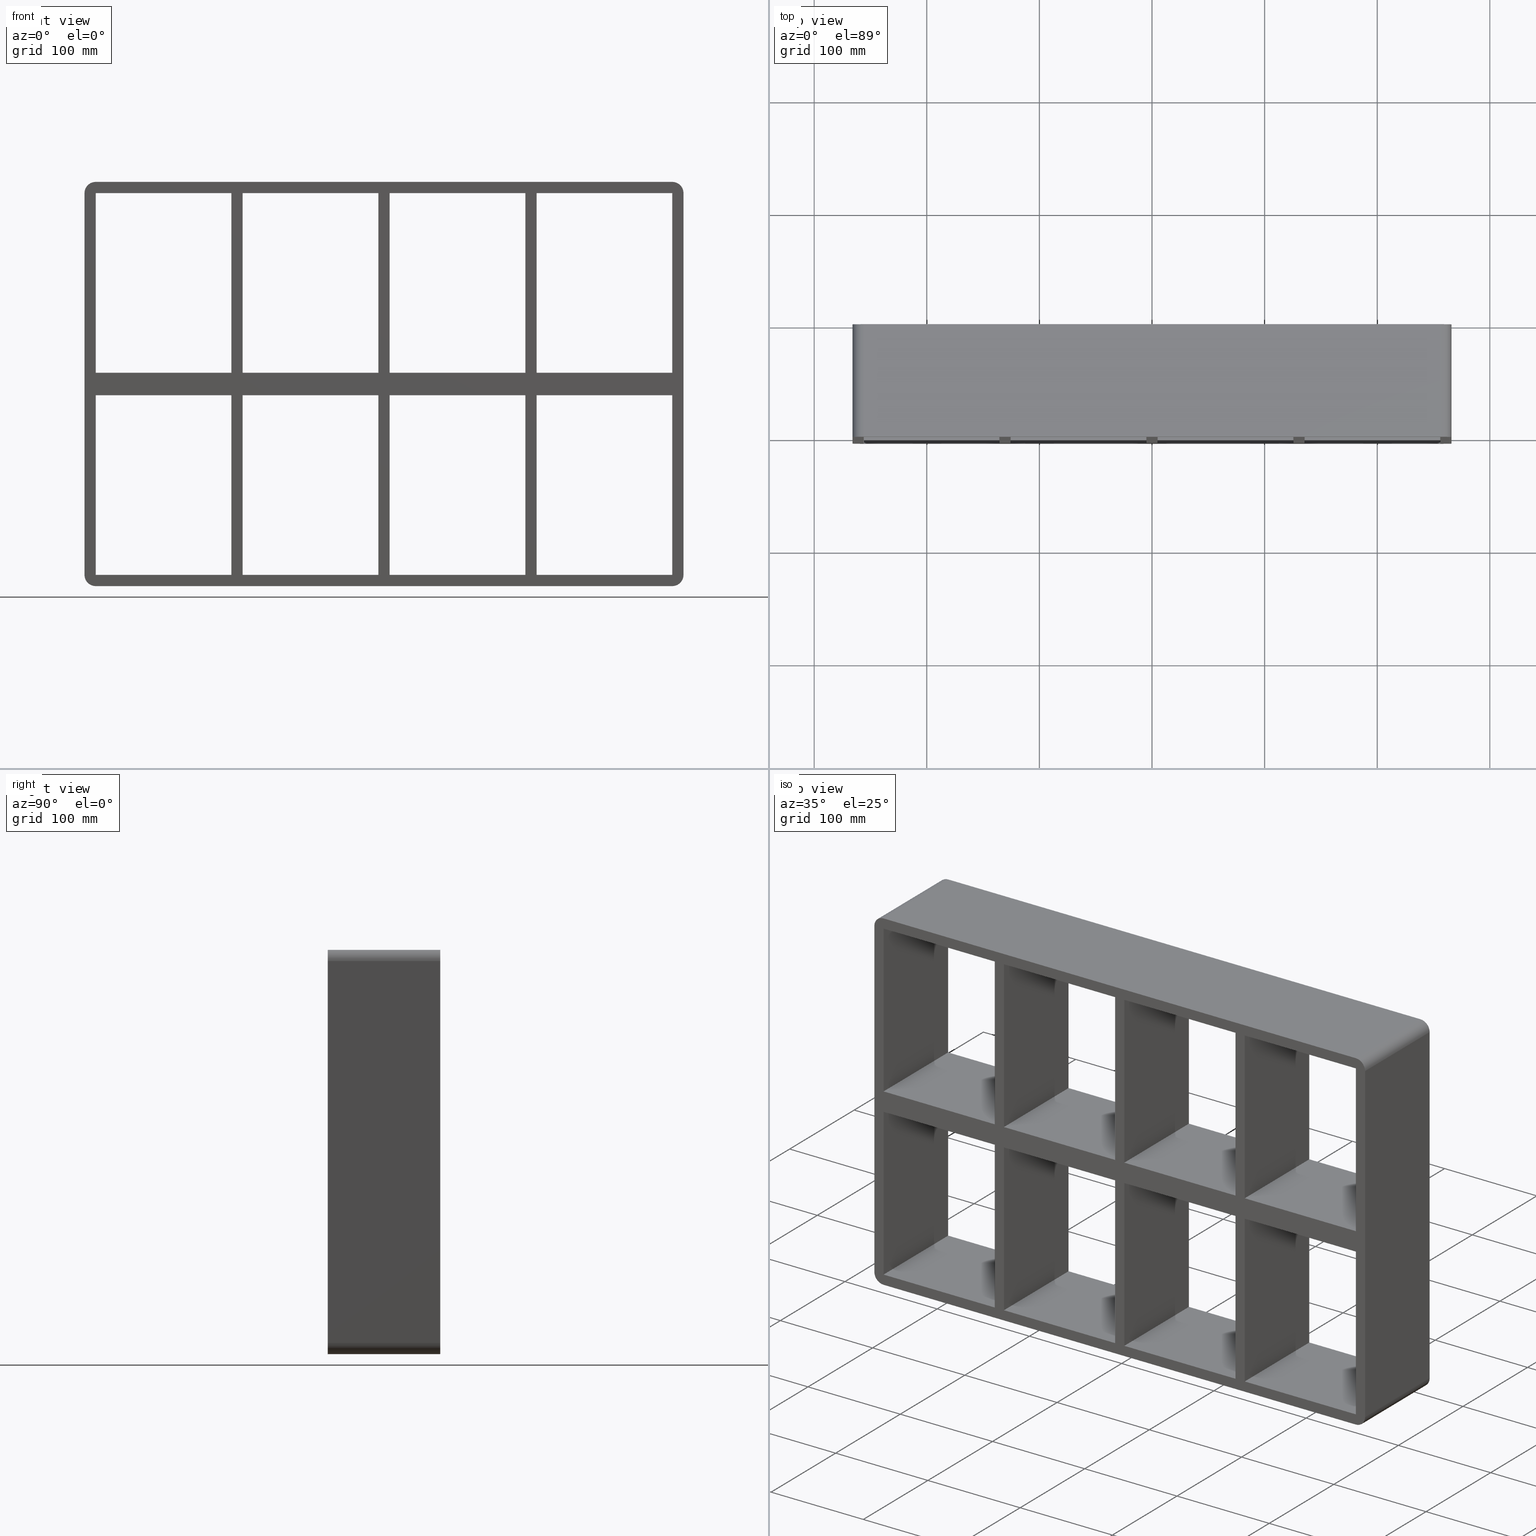
[diagram: canonical four-view strip — front | top / right | iso, engineering-drawing reading convention]
A machine part, canonical four-view strip (front | top / right | iso — engineering-drawing reading convention). The complete STEP part file that produces these views, byte-faithful:
ISO-10303-21;
HEADER;
/****************************************************************
 * Generated by software with PDElib inside                    *
 * PDElib Version v51a, created Wed 11/30/2011                  *
 * ITI Transcendata (http://www.transcendata.com/)              *
 ****************************************************************/
FILE_DESCRIPTION((''),'2;1');
FILE_NAME('C:\\RoxtecConfigurator\\CreatedFiles\\STEP\\SK4+4X4.stp','2013-02-22T14:22:01',(''),(''),'Autodesk Inventor 2013','Autodesk Inventor 2013','');
FILE_SCHEMA(('AUTOMOTIVE_DESIGN { 1 0 10303 214 1 1 1 1 }'));
ENDSEC;
DATA;
#5=APPLICATION_CONTEXT('automotive design');
#6=APPLICATION_PROTOCOL_DEFINITION('International Standard','automotive_design',2001,#5);
#7=PRODUCT_CONTEXT('',#5,'mechanical');
#8=PRODUCT('roxtec S_SF_G','roxtec S_SF_G',$,(#7));
#9=PRODUCT_RELATED_PRODUCT_CATEGORY('part',$,(#8));
#10=PRODUCT_DEFINITION_FORMATION('',$,#8);
#11=PRODUCT_DEFINITION_CONTEXT('part definition',#5,'design');
#12=PRODUCT_DEFINITION('',$,#10,#11);
#18=(NAMED_UNIT(*)PLANE_ANGLE_UNIT()SI_UNIT($,.RADIAN.));
#19=DIMENSIONAL_EXPONENTS(0.0,0.0,0.0,0.0,0.0,0.0,0.0);
#20=PLANE_ANGLE_MEASURE_WITH_UNIT(PLANE_ANGLE_MEASURE(0.0174532925),#18);
#24=(CONVERSION_BASED_UNIT('DEGREE',#20)NAMED_UNIT(#19)PLANE_ANGLE_UNIT());
#28=(NAMED_UNIT(*)SI_UNIT($,.STERADIAN.)SOLID_ANGLE_UNIT());
#32=(LENGTH_UNIT()NAMED_UNIT(*)SI_UNIT(.MILLI.,.METRE.));
#34=UNCERTAINTY_MEASURE_WITH_UNIT(LENGTH_MEASURE(0.01),#32,'DISTANCE_ACCURACY_VALUE','');
#36=(GEOMETRIC_REPRESENTATION_CONTEXT(3)GLOBAL_UNCERTAINTY_ASSIGNED_CONTEXT((#34))GLOBAL_UNIT_ASSIGNED_CONTEXT((#24,#28,#32))REPRESENTATION_CONTEXT('None','None'));
#37=AXIS2_PLACEMENT_3D('',#38,#39,#40);
#38=CARTESIAN_POINT('',(0.0,0.0,0.0));
#39=DIRECTION('',(0.0,0.0,1.0));
#40=DIRECTION('',(1.0,0.0,0.0));
#41=SHAPE_REPRESENTATION('',(#37),#36);
#42=PRODUCT_DEFINITION_SHAPE('','',#12);
#43=SHAPE_DEFINITION_REPRESENTATION(#42,#41);
#49=(NAMED_UNIT(*)PLANE_ANGLE_UNIT()SI_UNIT($,.RADIAN.));
#50=DIMENSIONAL_EXPONENTS(0.0,0.0,0.0,0.0,0.0,0.0,0.0);
#51=PLANE_ANGLE_MEASURE_WITH_UNIT(PLANE_ANGLE_MEASURE(0.0174532925),#49);
#55=(CONVERSION_BASED_UNIT('DEGREE',#51)NAMED_UNIT(#50)PLANE_ANGLE_UNIT());
#59=(NAMED_UNIT(*)SI_UNIT($,.STERADIAN.)SOLID_ANGLE_UNIT());
#63=(LENGTH_UNIT()NAMED_UNIT(*)SI_UNIT(.MILLI.,.METRE.));
#65=UNCERTAINTY_MEASURE_WITH_UNIT(LENGTH_MEASURE(0.000001),#63,'DISTANCE_ACCURACY_VALUE','');
#67=(GEOMETRIC_REPRESENTATION_CONTEXT(3)GLOBAL_UNCERTAINTY_ASSIGNED_CONTEXT((#65))GLOBAL_UNIT_ASSIGNED_CONTEXT((#55,#59,#63))REPRESENTATION_CONTEXT('','3D'));
#68=CARTESIAN_POINT('',(125.49999999999886,-3.0,-169.50000000000003));
#69=DIRECTION('',(-1.0,0.0,0.0));
#70=DIRECTION('',(0.0,0.0,1.0));
#71=AXIS2_PLACEMENT_3D('',#68,#69,#70);
#72=PLANE('',#71);
#73=CARTESIAN_POINT('',(125.49999999999883,-3.0,10.0));
#74=VERTEX_POINT('',#73);
#75=CARTESIAN_POINT('',(125.49999999999883,97.0,10.0));
#76=VERTEX_POINT('',#75);
#77=CARTESIAN_POINT('',(125.49999999999883,-3.0,10.000000000000009));
#78=DIRECTION('',(0.0,1.0,0.0));
#79=VECTOR('',#78,100.0);
#80=LINE('',#77,#79);
#81=EDGE_CURVE('',#74,#76,#80,.T.);
#82=ORIENTED_EDGE('',*,*,#81,.F.);
#83=CARTESIAN_POINT('',(125.49999999999881,-3.0,169.50000000000003));
#84=VERTEX_POINT('',#83);
#85=CARTESIAN_POINT('',(125.49999999999882,-3.0,10.0));
#86=DIRECTION('',(0.0,0.0,1.0));
#87=VECTOR('',#86,159.50000000000003);
#88=LINE('',#85,#87);
#89=EDGE_CURVE('',#74,#84,#88,.T.);
#90=ORIENTED_EDGE('',*,*,#89,.T.);
#91=CARTESIAN_POINT('',(125.49999999999881,97.0,169.50000000000003));
#92=VERTEX_POINT('',#91);
#93=CARTESIAN_POINT('',(125.49999999999881,97.0,169.50000000000003));
#94=DIRECTION('',(0.0,-1.0,0.0));
#95=VECTOR('',#94,100.0);
#96=LINE('',#93,#95);
#97=EDGE_CURVE('',#92,#84,#96,.T.);
#98=ORIENTED_EDGE('',*,*,#97,.F.);
#99=CARTESIAN_POINT('',(125.49999999999882,97.0,10.0));
#100=DIRECTION('',(0.0,0.0,1.0));
#101=VECTOR('',#100,159.50000000000003);
#102=LINE('',#99,#101);
#103=EDGE_CURVE('',#76,#92,#102,.T.);
#104=ORIENTED_EDGE('',*,*,#103,.F.);
#105=EDGE_LOOP('',(#82,#90,#98,#104));
#106=FACE_OUTER_BOUND('',#105,.T.);
#107=ADVANCED_FACE('',(#106),#72,.T.);
#108=CARTESIAN_POINT('',(125.49999999999886,-3.0,-169.50000000000003));
#109=DIRECTION('',(-1.0,0.0,0.0));
#110=DIRECTION('',(0.0,0.0,1.0));
#111=AXIS2_PLACEMENT_3D('',#108,#109,#110);
#112=PLANE('',#111);
#113=CARTESIAN_POINT('',(125.49999999999883,97.0,-10.000000000015525));
#114=VERTEX_POINT('',#113);
#115=CARTESIAN_POINT('',(125.49999999999883,-3.0,-10.000000000015525));
#116=VERTEX_POINT('',#115);
#117=CARTESIAN_POINT('',(125.49999999999882,97.0,-10.000000000015534));
#118=DIRECTION('',(0.0,-1.0,0.0));
#119=VECTOR('',#118,100.0);
#120=LINE('',#117,#119);
#121=EDGE_CURVE('',#114,#116,#120,.T.);
#122=ORIENTED_EDGE('',*,*,#121,.F.);
#123=CARTESIAN_POINT('',(125.49999999999886,97.0,-169.50000000000003));
#124=VERTEX_POINT('',#123);
#125=CARTESIAN_POINT('',(125.49999999999886,97.0,-169.50000000000003));
#126=DIRECTION('',(0.0,0.0,1.0));
#127=VECTOR('',#126,159.49999999998451);
#128=LINE('',#125,#127);
#129=EDGE_CURVE('',#124,#114,#128,.T.);
#130=ORIENTED_EDGE('',*,*,#129,.F.);
#131=CARTESIAN_POINT('',(125.49999999999886,-3.0,-169.50000000000003));
#132=VERTEX_POINT('',#131);
#133=CARTESIAN_POINT('',(125.49999999999886,-3.0,-169.50000000000003));
#134=DIRECTION('',(0.0,1.0,0.0));
#135=VECTOR('',#134,100.0);
#136=LINE('',#133,#135);
#137=EDGE_CURVE('',#132,#124,#136,.T.);
#138=ORIENTED_EDGE('',*,*,#137,.F.);
#139=CARTESIAN_POINT('',(125.49999999999886,-3.0,-169.50000000000003));
#140=DIRECTION('',(0.0,0.0,1.0));
#141=VECTOR('',#140,159.49999999998451);
#142=LINE('',#139,#141);
#143=EDGE_CURVE('',#132,#116,#142,.T.);
#144=ORIENTED_EDGE('',*,*,#143,.T.);
#145=EDGE_LOOP('',(#122,#130,#138,#144));
#146=FACE_OUTER_BOUND('',#145,.T.);
#147=ADVANCED_FACE('',(#146),#112,.T.);
#148=CARTESIAN_POINT('',(135.50000000000728,-3.0,169.50000000000003));
#149=DIRECTION('',(1.0,0.0,0.0));
#150=DIRECTION('',(0.0,0.0,-1.0));
#151=AXIS2_PLACEMENT_3D('',#148,#149,#150);
#152=PLANE('',#151);
#153=CARTESIAN_POINT('',(135.50000000000728,97.0,10.0));
#154=VERTEX_POINT('',#153);
#155=CARTESIAN_POINT('',(135.50000000000728,-3.0,10.0));
#156=VERTEX_POINT('',#155);
#157=CARTESIAN_POINT('',(135.50000000000728,97.0,10.0));
#158=DIRECTION('',(0.0,-1.0,0.0));
#159=VECTOR('',#158,100.0);
#160=LINE('',#157,#159);
#161=EDGE_CURVE('',#154,#156,#160,.T.);
#162=ORIENTED_EDGE('',*,*,#161,.F.);
#163=CARTESIAN_POINT('',(135.50000000000728,97.0,169.50000000000003));
#164=VERTEX_POINT('',#163);
#165=CARTESIAN_POINT('',(135.50000000000728,97.0,169.50000000000003));
#166=DIRECTION('',(0.0,0.0,-1.0));
#167=VECTOR('',#166,159.50000000000003);
#168=LINE('',#165,#167);
#169=EDGE_CURVE('',#164,#154,#168,.T.);
#170=ORIENTED_EDGE('',*,*,#169,.F.);
#171=CARTESIAN_POINT('',(135.50000000000728,-3.0,169.50000000000003));
#172=VERTEX_POINT('',#171);
#173=CARTESIAN_POINT('',(135.5000000000073,-3.0,169.50000000000003));
#174=DIRECTION('',(0.0,1.0,0.0));
#175=VECTOR('',#174,100.0);
#176=LINE('',#173,#175);
#177=EDGE_CURVE('',#172,#164,#176,.T.);
#178=ORIENTED_EDGE('',*,*,#177,.F.);
#179=CARTESIAN_POINT('',(135.50000000000728,-3.0,169.50000000000003));
#180=DIRECTION('',(0.0,0.0,-1.0));
#181=VECTOR('',#180,159.50000000000003);
#182=LINE('',#179,#181);
#183=EDGE_CURVE('',#172,#156,#182,.T.);
#184=ORIENTED_EDGE('',*,*,#183,.T.);
#185=EDGE_LOOP('',(#162,#170,#178,#184));
#186=FACE_OUTER_BOUND('',#185,.T.);
#187=ADVANCED_FACE('',(#186),#152,.T.);
#188=CARTESIAN_POINT('',(135.50000000000728,-3.0,169.50000000000003));
#189=DIRECTION('',(1.0,0.0,0.0));
#190=DIRECTION('',(0.0,0.0,-1.0));
#191=AXIS2_PLACEMENT_3D('',#188,#189,#190);
#192=PLANE('',#191);
#193=CARTESIAN_POINT('',(135.50000000000728,-3.0,-10.000000000015525));
#194=VERTEX_POINT('',#193);
#195=CARTESIAN_POINT('',(135.50000000000728,97.0,-10.000000000015525));
#196=VERTEX_POINT('',#195);
#197=CARTESIAN_POINT('',(135.50000000000728,-3.0,-10.000000000015525));
#198=DIRECTION('',(0.0,1.0,0.0));
#199=VECTOR('',#198,100.0);
#200=LINE('',#197,#199);
#201=EDGE_CURVE('',#194,#196,#200,.T.);
#202=ORIENTED_EDGE('',*,*,#201,.F.);
#203=CARTESIAN_POINT('',(135.50000000000728,-3.0,-169.49999999997459));
#204=VERTEX_POINT('',#203);
#205=CARTESIAN_POINT('',(135.50000000000728,-3.0,-10.000000000015518));
#206=DIRECTION('',(0.0,0.0,-1.0));
#207=VECTOR('',#206,159.4999999999591);
#208=LINE('',#205,#207);
#209=EDGE_CURVE('',#194,#204,#208,.T.);
#210=ORIENTED_EDGE('',*,*,#209,.T.);
#211=CARTESIAN_POINT('',(135.50000000000728,97.0,-169.49999999997459));
#212=VERTEX_POINT('',#211);
#213=CARTESIAN_POINT('',(135.5000000000073,97.0,-169.50000000000003));
#214=DIRECTION('',(0.0,-1.0,0.0));
#215=VECTOR('',#214,100.0);
#216=LINE('',#213,#215);
#217=EDGE_CURVE('',#212,#204,#216,.T.);
#218=ORIENTED_EDGE('',*,*,#217,.F.);
#219=CARTESIAN_POINT('',(135.50000000000728,97.0,-10.000000000015518));
#220=DIRECTION('',(0.0,0.0,-1.0));
#221=VECTOR('',#220,159.4999999999591);
#222=LINE('',#219,#221);
#223=EDGE_CURVE('',#196,#212,#222,.T.);
#224=ORIENTED_EDGE('',*,*,#223,.F.);
#225=EDGE_LOOP('',(#202,#210,#218,#224));
#226=FACE_OUTER_BOUND('',#225,.T.);
#227=ADVANCED_FACE('',(#226),#192,.T.);
#228=CARTESIAN_POINT('',(-5.000000000001137,-3.0,-169.50000000000003));
#229=DIRECTION('',(-1.0,0.0,0.0));
#230=DIRECTION('',(0.0,0.0,1.0));
#231=AXIS2_PLACEMENT_3D('',#228,#229,#230);
#232=PLANE('',#231);
#233=CARTESIAN_POINT('',(-5.000000000001174,-3.0,10.0));
#234=VERTEX_POINT('',#233);
#235=CARTESIAN_POINT('',(-5.000000000001174,97.0,10.0));
#236=VERTEX_POINT('',#235);
#237=CARTESIAN_POINT('',(-5.000000000001173,-3.0,9.999999999999991));
#238=DIRECTION('',(0.0,1.0,0.0));
#239=VECTOR('',#238,100.0);
#240=LINE('',#237,#239);
#241=EDGE_CURVE('',#234,#236,#240,.T.);
#242=ORIENTED_EDGE('',*,*,#241,.F.);
#243=CARTESIAN_POINT('',(-5.000000000001208,-3.0,169.50000000000003));
#244=VERTEX_POINT('',#243);
#245=CARTESIAN_POINT('',(-5.000000000001174,-3.0,10.0));
#246=DIRECTION('',(0.0,0.0,1.0));
#247=VECTOR('',#246,159.50000000000003);
#248=LINE('',#245,#247);
#249=EDGE_CURVE('',#234,#244,#248,.T.);
#250=ORIENTED_EDGE('',*,*,#249,.T.);
#251=CARTESIAN_POINT('',(-5.000000000001208,97.0,169.50000000000003));
#252=VERTEX_POINT('',#251);
#253=CARTESIAN_POINT('',(-5.000000000001208,97.0,169.50000000000003));
#254=DIRECTION('',(0.0,-1.0,0.0));
#255=VECTOR('',#254,100.0);
#256=LINE('',#253,#255);
#257=EDGE_CURVE('',#252,#244,#256,.T.);
#258=ORIENTED_EDGE('',*,*,#257,.F.);
#259=CARTESIAN_POINT('',(-5.000000000001174,97.0,10.0));
#260=DIRECTION('',(0.0,0.0,1.0));
#261=VECTOR('',#260,159.50000000000003);
#262=LINE('',#259,#261);
#263=EDGE_CURVE('',#236,#252,#262,.T.);
#264=ORIENTED_EDGE('',*,*,#263,.F.);
#265=EDGE_LOOP('',(#242,#250,#258,#264));
#266=FACE_OUTER_BOUND('',#265,.T.);
#267=ADVANCED_FACE('',(#266),#232,.T.);
#268=CARTESIAN_POINT('',(-5.000000000001137,-3.0,-169.50000000000003));
#269=DIRECTION('',(-1.0,0.0,0.0));
#270=DIRECTION('',(0.0,0.0,1.0));
#271=AXIS2_PLACEMENT_3D('',#268,#269,#270);
#272=PLANE('',#271);
#273=CARTESIAN_POINT('',(-5.000000000001171,97.0,-10.000000000015561));
#274=VERTEX_POINT('',#273);
#275=CARTESIAN_POINT('',(-5.000000000001171,-3.0,-10.000000000015561));
#276=VERTEX_POINT('',#275);
#277=CARTESIAN_POINT('',(-5.000000000001172,97.0,-10.00000000001557));
#278=DIRECTION('',(0.0,-1.0,0.0));
#279=VECTOR('',#278,100.0);
#280=LINE('',#277,#279);
#281=EDGE_CURVE('',#274,#276,#280,.T.);
#282=ORIENTED_EDGE('',*,*,#281,.F.);
#283=CARTESIAN_POINT('',(-5.000000000001137,97.0,-169.50000000000003));
#284=VERTEX_POINT('',#283);
#285=CARTESIAN_POINT('',(-5.000000000001137,97.0,-169.50000000000003));
#286=DIRECTION('',(0.0,0.0,1.0));
#287=VECTOR('',#286,159.49999999998448);
#288=LINE('',#285,#287);
#289=EDGE_CURVE('',#284,#274,#288,.T.);
#290=ORIENTED_EDGE('',*,*,#289,.F.);
#291=CARTESIAN_POINT('',(-5.000000000001137,-3.0,-169.50000000000003));
#292=VERTEX_POINT('',#291);
#293=CARTESIAN_POINT('',(-5.000000000001137,-3.0,-169.50000000000003));
#294=DIRECTION('',(0.0,1.0,0.0));
#295=VECTOR('',#294,100.0);
#296=LINE('',#293,#295);
#297=EDGE_CURVE('',#292,#284,#296,.T.);
#298=ORIENTED_EDGE('',*,*,#297,.F.);
#299=CARTESIAN_POINT('',(-5.000000000001137,-3.0,-169.50000000000003));
#300=DIRECTION('',(0.0,0.0,1.0));
#301=VECTOR('',#300,159.49999999998448);
#302=LINE('',#299,#301);
#303=EDGE_CURVE('',#292,#276,#302,.T.);
#304=ORIENTED_EDGE('',*,*,#303,.T.);
#305=EDGE_LOOP('',(#282,#290,#298,#304));
#306=FACE_OUTER_BOUND('',#305,.T.);
#307=ADVANCED_FACE('',(#306),#272,.T.);
#308=CARTESIAN_POINT('',(5.000000000007283,-3.0,169.50000000000003));
#309=DIRECTION('',(1.0,0.0,0.0));
#310=DIRECTION('',(0.0,0.0,-1.0));
#311=AXIS2_PLACEMENT_3D('',#308,#309,#310);
#312=PLANE('',#311);
#313=CARTESIAN_POINT('',(5.000000000007283,97.0,10.0));
#314=VERTEX_POINT('',#313);
#315=CARTESIAN_POINT('',(5.000000000007283,-3.0,10.0));
#316=VERTEX_POINT('',#315);
#317=CARTESIAN_POINT('',(5.000000000007283,97.0,10.0));
#318=DIRECTION('',(0.0,-1.0,0.0));
#319=VECTOR('',#318,100.0);
#320=LINE('',#317,#319);
#321=EDGE_CURVE('',#314,#316,#320,.T.);
#322=ORIENTED_EDGE('',*,*,#321,.F.);
#323=CARTESIAN_POINT('',(5.000000000007283,97.0,169.50000000000003));
#324=VERTEX_POINT('',#323);
#325=CARTESIAN_POINT('',(5.000000000007283,97.0,169.50000000000003));
#326=DIRECTION('',(0.0,0.0,-1.0));
#327=VECTOR('',#326,159.50000000000003);
#328=LINE('',#325,#327);
#329=EDGE_CURVE('',#324,#314,#328,.T.);
#330=ORIENTED_EDGE('',*,*,#329,.F.);
#331=CARTESIAN_POINT('',(5.000000000007283,-3.0,169.50000000000003));
#332=VERTEX_POINT('',#331);
#333=CARTESIAN_POINT('',(5.000000000007283,-3.0,169.50000000000003));
#334=DIRECTION('',(0.0,1.0,0.0));
#335=VECTOR('',#334,100.0);
#336=LINE('',#333,#335);
#337=EDGE_CURVE('',#332,#324,#336,.T.);
#338=ORIENTED_EDGE('',*,*,#337,.F.);
#339=CARTESIAN_POINT('',(5.000000000007283,-3.0,169.50000000000003));
#340=DIRECTION('',(0.0,0.0,-1.0));
#341=VECTOR('',#340,159.50000000000003);
#342=LINE('',#339,#341);
#343=EDGE_CURVE('',#332,#316,#342,.T.);
#344=ORIENTED_EDGE('',*,*,#343,.T.);
#345=EDGE_LOOP('',(#322,#330,#338,#344));
#346=FACE_OUTER_BOUND('',#345,.T.);
#347=ADVANCED_FACE('',(#346),#312,.T.);
#348=CARTESIAN_POINT('',(5.000000000007283,-3.0,169.50000000000003));
#349=DIRECTION('',(1.0,0.0,0.0));
#350=DIRECTION('',(0.0,0.0,-1.0));
#351=AXIS2_PLACEMENT_3D('',#348,#349,#350);
#352=PLANE('',#351);
#353=CARTESIAN_POINT('',(5.000000000007283,-3.0,-10.000000000015561));
#354=VERTEX_POINT('',#353);
#355=CARTESIAN_POINT('',(5.000000000007283,97.0,-10.000000000015561));
#356=VERTEX_POINT('',#355);
#357=CARTESIAN_POINT('',(5.000000000007283,-3.0,-10.000000000015561));
#358=DIRECTION('',(0.0,1.0,0.0));
#359=VECTOR('',#358,100.0);
#360=LINE('',#357,#359);
#361=EDGE_CURVE('',#354,#356,#360,.T.);
#362=ORIENTED_EDGE('',*,*,#361,.F.);
#363=CARTESIAN_POINT('',(5.000000000007283,-3.0,-169.49999999997459));
#364=VERTEX_POINT('',#363);
#365=CARTESIAN_POINT('',(5.000000000007283,-3.0,-10.000000000015547));
#366=DIRECTION('',(0.0,0.0,-1.0));
#367=VECTOR('',#366,159.49999999995907);
#368=LINE('',#365,#367);
#369=EDGE_CURVE('',#354,#364,#368,.T.);
#370=ORIENTED_EDGE('',*,*,#369,.T.);
#371=CARTESIAN_POINT('',(5.000000000007283,97.0,-169.49999999997459));
#372=VERTEX_POINT('',#371);
#373=CARTESIAN_POINT('',(5.000000000007283,97.0,-169.50000000000003));
#374=DIRECTION('',(0.0,-1.0,0.0));
#375=VECTOR('',#374,100.0);
#376=LINE('',#373,#375);
#377=EDGE_CURVE('',#372,#364,#376,.T.);
#378=ORIENTED_EDGE('',*,*,#377,.F.);
#379=CARTESIAN_POINT('',(5.000000000007283,97.0,-10.000000000015547));
#380=DIRECTION('',(0.0,0.0,-1.0));
#381=VECTOR('',#380,159.49999999995907);
#382=LINE('',#379,#381);
#383=EDGE_CURVE('',#356,#372,#382,.T.);
#384=ORIENTED_EDGE('',*,*,#383,.F.);
#385=EDGE_LOOP('',(#362,#370,#378,#384));
#386=FACE_OUTER_BOUND('',#385,.T.);
#387=ADVANCED_FACE('',(#386),#352,.T.);
#388=CARTESIAN_POINT('',(255.99999999999997,0.0,-169.50000000000003));
#389=DIRECTION('',(0.0,0.0,-1.0));
#390=DIRECTION('',(-1.0,0.0,0.0));
#391=AXIS2_PLACEMENT_3D('',#388,#389,#390);
#392=PLANE('',#391);
#393=ORIENTED_EDGE('',*,*,#297,.T.);
#394=CARTESIAN_POINT('',(-125.49999999999272,97.0,-169.49999999997459));
#395=VERTEX_POINT('',#394);
#396=CARTESIAN_POINT('',(-125.49999999999272,97.0,-169.50000000000003));
#397=DIRECTION('',(1.0,0.0,0.0));
#398=VECTOR('',#397,120.49999999999159);
#399=LINE('',#396,#398);
#400=EDGE_CURVE('',#395,#284,#399,.T.);
#401=ORIENTED_EDGE('',*,*,#400,.F.);
#402=CARTESIAN_POINT('',(-125.49999999999272,-3.0,-169.49999999997459));
#403=VERTEX_POINT('',#402);
#404=CARTESIAN_POINT('',(-125.49999999999271,97.0,-169.50000000000003));
#405=DIRECTION('',(0.0,-1.0,0.0));
#406=VECTOR('',#405,100.0);
#407=LINE('',#404,#406);
#408=EDGE_CURVE('',#395,#403,#407,.T.);
#409=ORIENTED_EDGE('',*,*,#408,.T.);
#410=CARTESIAN_POINT('',(-5.000000000001137,-3.0,-169.50000000000003));
#411=DIRECTION('',(-1.0,0.0,0.0));
#412=VECTOR('',#411,120.49999999999159);
#413=LINE('',#410,#412);
#414=EDGE_CURVE('',#292,#403,#413,.T.);
#415=ORIENTED_EDGE('',*,*,#414,.F.);
#416=EDGE_LOOP('',(#393,#401,#409,#415));
#417=FACE_OUTER_BOUND('',#416,.T.);
#418=ADVANCED_FACE('',(#417),#392,.F.);
#419=CARTESIAN_POINT('',(255.99999999999997,0.0,-169.50000000000003));
#420=DIRECTION('',(0.0,0.0,-1.0));
#421=DIRECTION('',(-1.0,0.0,0.0));
#422=AXIS2_PLACEMENT_3D('',#419,#420,#421);
#423=PLANE('',#422);
#424=ORIENTED_EDGE('',*,*,#137,.T.);
#425=CARTESIAN_POINT('',(5.000000000007276,97.0,-169.50000000000003));
#426=DIRECTION('',(1.0,0.0,0.0));
#427=VECTOR('',#426,120.49999999999159);
#428=LINE('',#425,#427);
#429=EDGE_CURVE('',#372,#124,#428,.T.);
#430=ORIENTED_EDGE('',*,*,#429,.F.);
#431=ORIENTED_EDGE('',*,*,#377,.T.);
#432=CARTESIAN_POINT('',(125.49999999999886,-3.0,-169.50000000000003));
#433=DIRECTION('',(-1.0,0.0,0.0));
#434=VECTOR('',#433,120.49999999999159);
#435=LINE('',#432,#434);
#436=EDGE_CURVE('',#132,#364,#435,.T.);
#437=ORIENTED_EDGE('',*,*,#436,.F.);
#438=EDGE_LOOP('',(#424,#430,#431,#437));
#439=FACE_OUTER_BOUND('',#438,.T.);
#440=ADVANCED_FACE('',(#439),#423,.F.);
#441=CARTESIAN_POINT('',(255.99999999999997,0.0,-169.50000000000003));
#442=DIRECTION('',(0.0,0.0,-1.0));
#443=DIRECTION('',(-1.0,0.0,0.0));
#444=AXIS2_PLACEMENT_3D('',#441,#442,#443);
#445=PLANE('',#444);
#446=ORIENTED_EDGE('',*,*,#217,.T.);
#447=CARTESIAN_POINT('',(255.99999999999997,-3.0,-169.50000000000003));
#448=VERTEX_POINT('',#447);
#449=CARTESIAN_POINT('',(255.99999999999997,-3.0,-169.50000000000003));
#450=DIRECTION('',(-1.0,0.0,0.0));
#451=VECTOR('',#450,120.4999999999927);
#452=LINE('',#449,#451);
#453=EDGE_CURVE('',#448,#204,#452,.T.);
#454=ORIENTED_EDGE('',*,*,#453,.F.);
#455=CARTESIAN_POINT('',(255.99999999999997,97.0,-169.50000000000003));
#456=VERTEX_POINT('',#455);
#457=CARTESIAN_POINT('',(255.99999999999997,97.0,-169.50000000000003));
#458=DIRECTION('',(0.0,-1.0,0.0));
#459=VECTOR('',#458,100.0);
#460=LINE('',#457,#459);
#461=EDGE_CURVE('',#456,#448,#460,.T.);
#462=ORIENTED_EDGE('',*,*,#461,.F.);
#463=CARTESIAN_POINT('',(135.50000000000728,97.0,-169.50000000000003));
#464=DIRECTION('',(1.0,0.0,0.0));
#465=VECTOR('',#464,120.4999999999927);
#466=LINE('',#463,#465);
#467=EDGE_CURVE('',#212,#456,#466,.T.);
#468=ORIENTED_EDGE('',*,*,#467,.F.);
#469=EDGE_LOOP('',(#446,#454,#462,#468));
#470=FACE_OUTER_BOUND('',#469,.T.);
#471=ADVANCED_FACE('',(#470),#445,.F.);
#472=CARTESIAN_POINT('',(3.931510E-014,-3.0,0.0));
#473=DIRECTION('',(0.0,1.0,0.0));
#474=DIRECTION('',(0.0,0.0,1.0));
#475=AXIS2_PLACEMENT_3D('',#472,#473,#474);
#476=PLANE('',#475);
#477=CARTESIAN_POINT('',(-255.99999999999997,-3.0,-179.50000000000003));
#478=VERTEX_POINT('',#477);
#479=CARTESIAN_POINT('',(-266.0,-3.0,-169.50000000000003));
#480=VERTEX_POINT('',#479);
#481=CARTESIAN_POINT('',(-255.99999999999997,-3.0,-169.50000000000003));
#482=DIRECTION('',(0.0,1.0,0.0));
#483=DIRECTION('',(-0.707106781186547,0.0,-0.707106781186547));
#484=AXIS2_PLACEMENT_3D('',#481,#482,#483);
#485=CIRCLE('',#484,9.999999999999998);
#486=EDGE_CURVE('',#478,#480,#485,.T.);
#487=ORIENTED_EDGE('',*,*,#486,.F.);
#488=CARTESIAN_POINT('',(256.00000000000006,-3.0,-179.50000000000003));
#489=VERTEX_POINT('',#488);
#490=CARTESIAN_POINT('',(-255.99999999999994,-3.0,-179.50000000000003));
#491=DIRECTION('',(1.0,0.0,0.0));
#492=VECTOR('',#491,512.0);
#493=LINE('',#490,#492);
#494=EDGE_CURVE('',#478,#489,#493,.T.);
#495=ORIENTED_EDGE('',*,*,#494,.T.);
#496=CARTESIAN_POINT('',(266.00000000000006,-3.0,-169.50000000000003));
#497=VERTEX_POINT('',#496);
#498=CARTESIAN_POINT('',(256.00000000000006,-3.0,-169.50000000000003));
#499=DIRECTION('',(0.0,1.0,0.0));
#500=DIRECTION('',(0.707106781186547,0.0,-0.707106781186547));
#501=AXIS2_PLACEMENT_3D('',#498,#499,#500);
#502=CIRCLE('',#501,9.999999999999998);
#503=EDGE_CURVE('',#497,#489,#502,.T.);
#504=ORIENTED_EDGE('',*,*,#503,.F.);
#505=CARTESIAN_POINT('',(266.00000000000006,-3.0,169.50000000000003));
#506=VERTEX_POINT('',#505);
#507=CARTESIAN_POINT('',(266.00000000000006,-3.0,-169.50000000000003));
#508=DIRECTION('',(0.0,0.0,1.0));
#509=VECTOR('',#508,339.00000000000006);
#510=LINE('',#507,#509);
#511=EDGE_CURVE('',#497,#506,#510,.T.);
#512=ORIENTED_EDGE('',*,*,#511,.T.);
#513=CARTESIAN_POINT('',(256.00000000000006,-3.0,179.50000000000003));
#514=VERTEX_POINT('',#513);
#515=CARTESIAN_POINT('',(256.00000000000006,-3.0,169.50000000000003));
#516=DIRECTION('',(0.0,1.0,0.0));
#517=DIRECTION('',(0.707106781186547,0.0,0.707106781186547));
#518=AXIS2_PLACEMENT_3D('',#515,#516,#517);
#519=CIRCLE('',#518,9.999999999999998);
#520=EDGE_CURVE('',#514,#506,#519,.T.);
#521=ORIENTED_EDGE('',*,*,#520,.F.);
#522=CARTESIAN_POINT('',(-255.99999999999997,-3.0,179.50000000000003));
#523=VERTEX_POINT('',#522);
#524=CARTESIAN_POINT('',(256.0,-3.0,179.50000000000003));
#525=DIRECTION('',(-1.0,0.0,0.0));
#526=VECTOR('',#525,512.0);
#527=LINE('',#524,#526);
#528=EDGE_CURVE('',#514,#523,#527,.T.);
#529=ORIENTED_EDGE('',*,*,#528,.T.);
#530=CARTESIAN_POINT('',(-266.0,-3.0,169.50000000000003));
#531=VERTEX_POINT('',#530);
#532=CARTESIAN_POINT('',(-255.99999999999997,-3.0,169.50000000000003));
#533=DIRECTION('',(0.0,1.0,0.0));
#534=DIRECTION('',(-0.707106781186547,0.0,0.707106781186547));
#535=AXIS2_PLACEMENT_3D('',#532,#533,#534);
#536=CIRCLE('',#535,9.999999999999998);
#537=EDGE_CURVE('',#531,#523,#536,.T.);
#538=ORIENTED_EDGE('',*,*,#537,.F.);
#539=CARTESIAN_POINT('',(-266.0,-3.0,169.50000000000003));
#540=DIRECTION('',(0.0,0.0,-1.0));
#541=VECTOR('',#540,339.00000000000006);
#542=LINE('',#539,#541);
#543=EDGE_CURVE('',#531,#480,#542,.T.);
#544=ORIENTED_EDGE('',*,*,#543,.T.);
#545=EDGE_LOOP('',(#487,#495,#504,#512,#521,#529,#538,#544));
#546=FACE_OUTER_BOUND('',#545,.T.);
#547=ORIENTED_EDGE('',*,*,#436,.T.);
#548=ORIENTED_EDGE('',*,*,#369,.F.);
#549=CARTESIAN_POINT('',(125.49999999999883,-3.0,-10.000000000015532));
#550=DIRECTION('',(-1.0,0.0,0.0));
#551=VECTOR('',#550,120.49999999999156);
#552=LINE('',#549,#551);
#553=EDGE_CURVE('',#116,#354,#552,.T.);
#554=ORIENTED_EDGE('',*,*,#553,.F.);
#555=ORIENTED_EDGE('',*,*,#143,.F.);
#556=EDGE_LOOP('',(#547,#548,#554,#555));
#557=FACE_BOUND('',#556,.T.);
#558=CARTESIAN_POINT('',(5.000000000007276,-3.0,10.0));
#559=DIRECTION('',(1.0,0.0,0.0));
#560=VECTOR('',#559,120.49999999999153);
#561=LINE('',#558,#560);
#562=EDGE_CURVE('',#316,#74,#561,.T.);
#563=ORIENTED_EDGE('',*,*,#562,.F.);
#564=ORIENTED_EDGE('',*,*,#343,.F.);
#565=CARTESIAN_POINT('',(5.000000000007276,-3.0,169.50000000000003));
#566=DIRECTION('',(1.0,0.0,0.0));
#567=VECTOR('',#566,120.49999999999153);
#568=LINE('',#565,#567);
#569=EDGE_CURVE('',#332,#84,#568,.T.);
#570=ORIENTED_EDGE('',*,*,#569,.T.);
#571=ORIENTED_EDGE('',*,*,#89,.F.);
#572=EDGE_LOOP('',(#563,#564,#570,#571));
#573=FACE_BOUND('',#572,.T.);
#574=ORIENTED_EDGE('',*,*,#414,.T.);
#575=CARTESIAN_POINT('',(-125.49999999999272,-3.0,-10.000000000015598));
#576=VERTEX_POINT('',#575);
#577=CARTESIAN_POINT('',(-125.49999999999272,-3.0,-10.000000000015604));
#578=DIRECTION('',(0.0,0.0,-1.0));
#579=VECTOR('',#578,159.49999999995902);
#580=LINE('',#577,#579);
#581=EDGE_CURVE('',#576,#403,#580,.T.);
#582=ORIENTED_EDGE('',*,*,#581,.F.);
#583=CARTESIAN_POINT('',(-5.000000000001194,-3.0,-10.000000000015566));
#584=DIRECTION('',(-1.0,0.0,0.0));
#585=VECTOR('',#584,120.49999999999153);
#586=LINE('',#583,#585);
#587=EDGE_CURVE('',#276,#576,#586,.T.);
#588=ORIENTED_EDGE('',*,*,#587,.F.);
#589=ORIENTED_EDGE('',*,*,#303,.F.);
#590=EDGE_LOOP('',(#574,#582,#588,#589));
#591=FACE_BOUND('',#590,.T.);
#592=CARTESIAN_POINT('',(-125.49999999999272,-3.0,10.0));
#593=VERTEX_POINT('',#592);
#594=CARTESIAN_POINT('',(-125.49999999999272,-3.0,10.0));
#595=DIRECTION('',(1.0,0.0,0.0));
#596=VECTOR('',#595,120.49999999999153);
#597=LINE('',#594,#596);
#598=EDGE_CURVE('',#593,#234,#597,.T.);
#599=ORIENTED_EDGE('',*,*,#598,.F.);
#600=CARTESIAN_POINT('',(-125.49999999999272,-3.0,169.50000000000003));
#601=VERTEX_POINT('',#600);
#602=CARTESIAN_POINT('',(-125.49999999999272,-3.0,169.50000000000003));
#603=DIRECTION('',(0.0,0.0,-1.0));
#604=VECTOR('',#603,159.50000000000003);
#605=LINE('',#602,#604);
#606=EDGE_CURVE('',#601,#593,#605,.T.);
#607=ORIENTED_EDGE('',*,*,#606,.F.);
#608=CARTESIAN_POINT('',(-125.49999999999272,-3.0,169.50000000000003));
#609=DIRECTION('',(1.0,0.0,0.0));
#610=VECTOR('',#609,120.49999999999152);
#611=LINE('',#608,#610);
#612=EDGE_CURVE('',#601,#244,#611,.T.);
#613=ORIENTED_EDGE('',*,*,#612,.T.);
#614=ORIENTED_EDGE('',*,*,#249,.F.);
#615=EDGE_LOOP('',(#599,#607,#613,#614));
#616=FACE_BOUND('',#615,.T.);
#617=ORIENTED_EDGE('',*,*,#183,.F.);
#618=CARTESIAN_POINT('',(255.99999999999997,-3.0,169.50000000000003));
#619=VERTEX_POINT('',#618);
#620=CARTESIAN_POINT('',(135.5000000000073,-3.0,169.50000000000003));
#621=DIRECTION('',(1.0,0.0,0.0));
#622=VECTOR('',#621,120.49999999999261);
#623=LINE('',#620,#622);
#624=EDGE_CURVE('',#172,#619,#623,.T.);
#625=ORIENTED_EDGE('',*,*,#624,.T.);
#626=CARTESIAN_POINT('',(255.99999999999983,-3.0,10.0));
#627=VERTEX_POINT('',#626);
#628=CARTESIAN_POINT('',(255.99999999999997,-3.0,169.50000000000003));
#629=DIRECTION('',(0.0,0.0,-1.0));
#630=VECTOR('',#629,159.50000000000003);
#631=LINE('',#628,#630);
#632=EDGE_CURVE('',#619,#627,#631,.T.);
#633=ORIENTED_EDGE('',*,*,#632,.T.);
#634=CARTESIAN_POINT('',(135.50000000000728,-3.0,10.0));
#635=DIRECTION('',(1.0,0.0,0.0));
#636=VECTOR('',#635,120.49999999999255);
#637=LINE('',#634,#636);
#638=EDGE_CURVE('',#156,#627,#637,.T.);
#639=ORIENTED_EDGE('',*,*,#638,.F.);
#640=EDGE_LOOP('',(#617,#625,#633,#639));
#641=FACE_BOUND('',#640,.T.);
#642=ORIENTED_EDGE('',*,*,#209,.F.);
#643=CARTESIAN_POINT('',(256.00000000000364,-3.0,-10.000000000015499));
#644=VERTEX_POINT('',#643);
#645=CARTESIAN_POINT('',(256.00000000000364,-3.0,-10.000000000015499));
#646=DIRECTION('',(-1.0,0.0,0.0));
#647=VECTOR('',#646,120.49999999999636);
#648=LINE('',#645,#647);
#649=EDGE_CURVE('',#644,#194,#648,.T.);
#650=ORIENTED_EDGE('',*,*,#649,.F.);
#651=CARTESIAN_POINT('',(255.99999999999997,-3.0,-10.00000000001549));
#652=DIRECTION('',(0.0,0.0,-1.0));
#653=VECTOR('',#652,159.49999999998457);
#654=LINE('',#651,#653);
#655=EDGE_CURVE('',#644,#448,#654,.T.);
#656=ORIENTED_EDGE('',*,*,#655,.T.);
#657=ORIENTED_EDGE('',*,*,#453,.T.);
#658=EDGE_LOOP('',(#642,#650,#656,#657));
#659=FACE_BOUND('',#658,.T.);
#660=CARTESIAN_POINT('',(-255.9999999999996,-3.0,10.0));
#661=VERTEX_POINT('',#660);
#662=CARTESIAN_POINT('',(-255.99999999999997,-3.0,169.50000000000003));
#663=VERTEX_POINT('',#662);
#664=CARTESIAN_POINT('',(-255.99999999999997,-3.0,10.0));
#665=DIRECTION('',(0.0,0.0,1.0));
#666=VECTOR('',#665,159.50000000000006);
#667=LINE('',#664,#666);
#668=EDGE_CURVE('',#661,#663,#667,.T.);
#669=ORIENTED_EDGE('',*,*,#668,.T.);
#670=CARTESIAN_POINT('',(-135.50000000000122,-3.0,169.50000000000003));
#671=VERTEX_POINT('',#670);
#672=CARTESIAN_POINT('',(-255.99999999999997,-3.0,169.50000000000003));
#673=DIRECTION('',(1.0,0.0,0.0));
#674=VECTOR('',#673,120.49999999999875);
#675=LINE('',#672,#674);
#676=EDGE_CURVE('',#663,#671,#675,.T.);
#677=ORIENTED_EDGE('',*,*,#676,.T.);
#678=CARTESIAN_POINT('',(-135.50000000000119,-3.0,10.0));
#679=VERTEX_POINT('',#678);
#680=CARTESIAN_POINT('',(-135.50000000000117,-3.0,10.0));
#681=DIRECTION('',(0.0,0.0,1.0));
#682=VECTOR('',#681,159.50000000000003);
#683=LINE('',#680,#682);
#684=EDGE_CURVE('',#679,#671,#683,.T.);
#685=ORIENTED_EDGE('',*,*,#684,.F.);
#686=CARTESIAN_POINT('',(-255.9999999999996,-3.0,10.0));
#687=DIRECTION('',(1.0,0.0,0.0));
#688=VECTOR('',#687,120.49999999999841);
#689=LINE('',#686,#688);
#690=EDGE_CURVE('',#661,#679,#689,.T.);
#691=ORIENTED_EDGE('',*,*,#690,.F.);
#692=EDGE_LOOP('',(#669,#677,#685,#691));
#693=FACE_BOUND('',#692,.T.);
#694=CARTESIAN_POINT('',(-135.50000000000111,-3.0,-10.0000000000156));
#695=VERTEX_POINT('',#694);
#696=CARTESIAN_POINT('',(-255.9999999999996,-3.0,-10.000000000015632));
#697=VERTEX_POINT('',#696);
#698=CARTESIAN_POINT('',(-135.50000000000114,-3.0,-10.0000000000156));
#699=DIRECTION('',(-1.0,0.0,0.0));
#700=VECTOR('',#699,120.49999999999841);
#701=LINE('',#698,#700);
#702=EDGE_CURVE('',#695,#697,#701,.T.);
#703=ORIENTED_EDGE('',*,*,#702,.F.);
#704=CARTESIAN_POINT('',(-135.50000000000114,-3.0,-169.50000000000003));
#705=VERTEX_POINT('',#704);
#706=CARTESIAN_POINT('',(-135.50000000000114,-3.0,-169.50000000000003));
#707=DIRECTION('',(0.0,0.0,1.0));
#708=VECTOR('',#707,159.49999999998442);
#709=LINE('',#706,#708);
#710=EDGE_CURVE('',#705,#695,#709,.T.);
#711=ORIENTED_EDGE('',*,*,#710,.F.);
#712=CARTESIAN_POINT('',(-255.99999999999997,-3.0,-169.50000000000003));
#713=VERTEX_POINT('',#712);
#714=CARTESIAN_POINT('',(-135.50000000000114,-3.0,-169.50000000000003));
#715=DIRECTION('',(-1.0,0.0,0.0));
#716=VECTOR('',#715,120.49999999999886);
#717=LINE('',#714,#716);
#718=EDGE_CURVE('',#705,#713,#717,.T.);
#719=ORIENTED_EDGE('',*,*,#718,.T.);
#720=CARTESIAN_POINT('',(-255.99999999999997,-3.0,-169.50000000000003));
#721=DIRECTION('',(0.0,0.0,1.0));
#722=VECTOR('',#721,159.4999999999844);
#723=LINE('',#720,#722);
#724=EDGE_CURVE('',#713,#697,#723,.T.);
#725=ORIENTED_EDGE('',*,*,#724,.T.);
#726=EDGE_LOOP('',(#703,#711,#719,#725));
#727=FACE_BOUND('',#726,.T.);
#728=ADVANCED_FACE('',(#546,#557,#573,#591,#616,#641,#659,#693,#727),#476,.F.);
#729=CARTESIAN_POINT('',(256.00000000000364,-3.0,-10.000000000015499));
#730=DIRECTION('',(0.0,0.0,-1.0));
#731=DIRECTION('',(-1.0,0.0,0.0));
#732=AXIS2_PLACEMENT_3D('',#729,#730,#731);
#733=PLANE('',#732);
#734=ORIENTED_EDGE('',*,*,#201,.T.);
#735=CARTESIAN_POINT('',(256.00000000000364,97.0,-10.000000000015499));
#736=VERTEX_POINT('',#735);
#737=CARTESIAN_POINT('',(256.00000000000364,97.0,-10.000000000015499));
#738=DIRECTION('',(-1.0,0.0,0.0));
#739=VECTOR('',#738,120.49999999999636);
#740=LINE('',#737,#739);
#741=EDGE_CURVE('',#736,#196,#740,.T.);
#742=ORIENTED_EDGE('',*,*,#741,.F.);
#743=CARTESIAN_POINT('',(255.99999999999997,-3.0,-10.00000000001549));
#744=DIRECTION('',(0.0,1.0,0.0));
#745=VECTOR('',#744,100.0);
#746=LINE('',#743,#745);
#747=EDGE_CURVE('',#644,#736,#746,.T.);
#748=ORIENTED_EDGE('',*,*,#747,.F.);
#749=ORIENTED_EDGE('',*,*,#649,.T.);
#750=EDGE_LOOP('',(#734,#742,#748,#749));
#751=FACE_OUTER_BOUND('',#750,.T.);
#752=ADVANCED_FACE('',(#751),#733,.T.);
#753=CARTESIAN_POINT('',(256.00000000000364,-3.0,-10.000000000015499));
#754=DIRECTION('',(0.0,0.0,-1.0));
#755=DIRECTION('',(-1.0,0.0,0.0));
#756=AXIS2_PLACEMENT_3D('',#753,#754,#755);
#757=PLANE('',#756);
#758=ORIENTED_EDGE('',*,*,#281,.T.);
#759=ORIENTED_EDGE('',*,*,#587,.T.);
#760=CARTESIAN_POINT('',(-125.49999999999272,97.0,-10.000000000015598));
#761=VERTEX_POINT('',#760);
#762=CARTESIAN_POINT('',(-125.49999999999272,97.0,-10.000000000015593));
#763=DIRECTION('',(0.0,-1.0,0.0));
#764=VECTOR('',#763,100.0);
#765=LINE('',#762,#764);
#766=EDGE_CURVE('',#761,#576,#765,.T.);
#767=ORIENTED_EDGE('',*,*,#766,.F.);
#768=CARTESIAN_POINT('',(-5.000000000001194,97.0,-10.000000000015566));
#769=DIRECTION('',(-1.0,0.0,0.0));
#770=VECTOR('',#769,120.49999999999153);
#771=LINE('',#768,#770);
#772=EDGE_CURVE('',#274,#761,#771,.T.);
#773=ORIENTED_EDGE('',*,*,#772,.F.);
#774=EDGE_LOOP('',(#758,#759,#767,#773));
#775=FACE_OUTER_BOUND('',#774,.T.);
#776=ADVANCED_FACE('',(#775),#757,.T.);
#777=CARTESIAN_POINT('',(3.931510E-014,97.0,0.0));
#778=DIRECTION('',(0.0,1.0,0.0));
#779=DIRECTION('',(0.0,0.0,1.0));
#780=AXIS2_PLACEMENT_3D('',#777,#778,#779);
#781=PLANE('',#780);
#782=CARTESIAN_POINT('',(-266.0,97.0,-169.50000000000003));
#783=VERTEX_POINT('',#782);
#784=CARTESIAN_POINT('',(-255.99999999999997,97.0,-179.50000000000003));
#785=VERTEX_POINT('',#784);
#786=CARTESIAN_POINT('',(-255.99999999999997,97.0,-169.50000000000003));
#787=DIRECTION('',(0.0,-1.0,0.0));
#788=DIRECTION('',(-0.707106781186547,0.0,-0.707106781186547));
#789=AXIS2_PLACEMENT_3D('',#786,#787,#788);
#790=CIRCLE('',#789,9.999999999999998);
#791=EDGE_CURVE('',#783,#785,#790,.T.);
#792=ORIENTED_EDGE('',*,*,#791,.F.);
#793=CARTESIAN_POINT('',(-266.0,97.0,169.50000000000003));
#794=VERTEX_POINT('',#793);
#795=CARTESIAN_POINT('',(-266.0,97.0,-169.50000000000003));
#796=DIRECTION('',(0.0,0.0,1.0));
#797=VECTOR('',#796,339.00000000000006);
#798=LINE('',#795,#797);
#799=EDGE_CURVE('',#783,#794,#798,.T.);
#800=ORIENTED_EDGE('',*,*,#799,.T.);
#801=CARTESIAN_POINT('',(-255.99999999999997,97.0,179.50000000000003));
#802=VERTEX_POINT('',#801);
#803=CARTESIAN_POINT('',(-255.99999999999997,97.0,169.50000000000003));
#804=DIRECTION('',(0.0,-1.0,0.0));
#805=DIRECTION('',(-0.707106781186547,0.0,0.707106781186547));
#806=AXIS2_PLACEMENT_3D('',#803,#804,#805);
#807=CIRCLE('',#806,9.999999999999998);
#808=EDGE_CURVE('',#802,#794,#807,.T.);
#809=ORIENTED_EDGE('',*,*,#808,.F.);
#810=CARTESIAN_POINT('',(256.00000000000006,97.0,179.50000000000003));
#811=VERTEX_POINT('',#810);
#812=CARTESIAN_POINT('',(-256.0,97.0,179.50000000000003));
#813=DIRECTION('',(1.0,0.0,0.0));
#814=VECTOR('',#813,512.0);
#815=LINE('',#812,#814);
#816=EDGE_CURVE('',#802,#811,#815,.T.);
#817=ORIENTED_EDGE('',*,*,#816,.T.);
#818=CARTESIAN_POINT('',(266.00000000000006,97.0,169.50000000000003));
#819=VERTEX_POINT('',#818);
#820=CARTESIAN_POINT('',(256.00000000000006,97.0,169.50000000000003));
#821=DIRECTION('',(0.0,-1.0,0.0));
#822=DIRECTION('',(0.707106781186547,0.0,0.707106781186547));
#823=AXIS2_PLACEMENT_3D('',#820,#821,#822);
#824=CIRCLE('',#823,9.999999999999998);
#825=EDGE_CURVE('',#819,#811,#824,.T.);
#826=ORIENTED_EDGE('',*,*,#825,.F.);
#827=CARTESIAN_POINT('',(266.00000000000006,97.0,-169.50000000000003));
#828=VERTEX_POINT('',#827);
#829=CARTESIAN_POINT('',(266.00000000000006,97.0,169.50000000000003));
#830=DIRECTION('',(0.0,0.0,-1.0));
#831=VECTOR('',#830,339.00000000000006);
#832=LINE('',#829,#831);
#833=EDGE_CURVE('',#819,#828,#832,.T.);
#834=ORIENTED_EDGE('',*,*,#833,.T.);
#835=CARTESIAN_POINT('',(256.00000000000006,97.0,-179.50000000000003));
#836=VERTEX_POINT('',#835);
#837=CARTESIAN_POINT('',(256.00000000000006,97.0,-169.50000000000003));
#838=DIRECTION('',(0.0,-1.0,0.0));
#839=DIRECTION('',(0.707106781186547,0.0,-0.707106781186547));
#840=AXIS2_PLACEMENT_3D('',#837,#838,#839);
#841=CIRCLE('',#840,9.999999999999998);
#842=EDGE_CURVE('',#836,#828,#841,.T.);
#843=ORIENTED_EDGE('',*,*,#842,.F.);
#844=CARTESIAN_POINT('',(256.00000000000006,97.0,-179.50000000000003));
#845=DIRECTION('',(-1.0,0.0,0.0));
#846=VECTOR('',#845,512.0);
#847=LINE('',#844,#846);
#848=EDGE_CURVE('',#836,#785,#847,.T.);
#849=ORIENTED_EDGE('',*,*,#848,.T.);
#850=EDGE_LOOP('',(#792,#800,#809,#817,#826,#834,#843,#849));
#851=FACE_OUTER_BOUND('',#850,.T.);
#852=ORIENTED_EDGE('',*,*,#467,.T.);
#853=CARTESIAN_POINT('',(255.99999999999997,97.0,-169.50000000000006));
#854=DIRECTION('',(0.0,0.0,1.0));
#855=VECTOR('',#854,159.49999999998457);
#856=LINE('',#853,#855);
#857=EDGE_CURVE('',#456,#736,#856,.T.);
#858=ORIENTED_EDGE('',*,*,#857,.T.);
#859=ORIENTED_EDGE('',*,*,#741,.T.);
#860=ORIENTED_EDGE('',*,*,#223,.T.);
#861=EDGE_LOOP('',(#852,#858,#859,#860));
#862=FACE_BOUND('',#861,.T.);
#863=CARTESIAN_POINT('',(255.99999999999989,97.0,10.0));
#864=VERTEX_POINT('',#863);
#865=CARTESIAN_POINT('',(135.50000000000728,97.0,10.0));
#866=DIRECTION('',(1.0,0.0,0.0));
#867=VECTOR('',#866,120.49999999999255);
#868=LINE('',#865,#867);
#869=EDGE_CURVE('',#154,#864,#868,.T.);
#870=ORIENTED_EDGE('',*,*,#869,.T.);
#871=CARTESIAN_POINT('',(255.99999999999997,97.0,169.50000000000003));
#872=VERTEX_POINT('',#871);
#873=CARTESIAN_POINT('',(255.99999999999997,97.0,10.0));
#874=DIRECTION('',(0.0,0.0,1.0));
#875=VECTOR('',#874,159.50000000000003);
#876=LINE('',#873,#875);
#877=EDGE_CURVE('',#864,#872,#876,.T.);
#878=ORIENTED_EDGE('',*,*,#877,.T.);
#879=CARTESIAN_POINT('',(255.99999999999991,97.0,169.50000000000003));
#880=DIRECTION('',(-1.0,0.0,0.0));
#881=VECTOR('',#880,120.49999999999261);
#882=LINE('',#879,#881);
#883=EDGE_CURVE('',#872,#164,#882,.T.);
#884=ORIENTED_EDGE('',*,*,#883,.T.);
#885=ORIENTED_EDGE('',*,*,#169,.T.);
#886=EDGE_LOOP('',(#870,#878,#884,#885));
#887=FACE_BOUND('',#886,.T.);
#888=ORIENTED_EDGE('',*,*,#129,.T.);
#889=CARTESIAN_POINT('',(125.49999999999883,97.0,-10.000000000015532));
#890=DIRECTION('',(-1.0,0.0,0.0));
#891=VECTOR('',#890,120.49999999999156);
#892=LINE('',#889,#891);
#893=EDGE_CURVE('',#114,#356,#892,.T.);
#894=ORIENTED_EDGE('',*,*,#893,.T.);
#895=ORIENTED_EDGE('',*,*,#383,.T.);
#896=ORIENTED_EDGE('',*,*,#429,.T.);
#897=EDGE_LOOP('',(#888,#894,#895,#896));
#898=FACE_BOUND('',#897,.T.);
#899=ORIENTED_EDGE('',*,*,#103,.T.);
#900=CARTESIAN_POINT('',(125.49999999999881,97.0,169.50000000000003));
#901=DIRECTION('',(-1.0,0.0,0.0));
#902=VECTOR('',#901,120.49999999999153);
#903=LINE('',#900,#902);
#904=EDGE_CURVE('',#92,#324,#903,.T.);
#905=ORIENTED_EDGE('',*,*,#904,.T.);
#906=ORIENTED_EDGE('',*,*,#329,.T.);
#907=CARTESIAN_POINT('',(5.000000000007276,97.0,10.0));
#908=DIRECTION('',(1.0,0.0,0.0));
#909=VECTOR('',#908,120.49999999999153);
#910=LINE('',#907,#909);
#911=EDGE_CURVE('',#314,#76,#910,.T.);
#912=ORIENTED_EDGE('',*,*,#911,.T.);
#913=EDGE_LOOP('',(#899,#905,#906,#912));
#914=FACE_BOUND('',#913,.T.);
#915=ORIENTED_EDGE('',*,*,#289,.T.);
#916=ORIENTED_EDGE('',*,*,#772,.T.);
#917=CARTESIAN_POINT('',(-125.49999999999272,97.0,-10.000000000015604));
#918=DIRECTION('',(0.0,0.0,-1.0));
#919=VECTOR('',#918,159.49999999995902);
#920=LINE('',#917,#919);
#921=EDGE_CURVE('',#761,#395,#920,.T.);
#922=ORIENTED_EDGE('',*,*,#921,.T.);
#923=ORIENTED_EDGE('',*,*,#400,.T.);
#924=EDGE_LOOP('',(#915,#916,#922,#923));
#925=FACE_BOUND('',#924,.T.);
#926=CARTESIAN_POINT('',(-255.9999999999996,97.0,10.0));
#927=VERTEX_POINT('',#926);
#928=CARTESIAN_POINT('',(-135.50000000000119,97.0,10.0));
#929=VERTEX_POINT('',#928);
#930=CARTESIAN_POINT('',(-255.9999999999996,97.0,10.0));
#931=DIRECTION('',(1.0,0.0,0.0));
#932=VECTOR('',#931,120.49999999999841);
#933=LINE('',#930,#932);
#934=EDGE_CURVE('',#927,#929,#933,.T.);
#935=ORIENTED_EDGE('',*,*,#934,.T.);
#936=CARTESIAN_POINT('',(-135.50000000000122,97.0,169.50000000000003));
#937=VERTEX_POINT('',#936);
#938=CARTESIAN_POINT('',(-135.50000000000117,97.0,10.0));
#939=DIRECTION('',(0.0,0.0,1.0));
#940=VECTOR('',#939,159.50000000000003);
#941=LINE('',#938,#940);
#942=EDGE_CURVE('',#929,#937,#941,.T.);
#943=ORIENTED_EDGE('',*,*,#942,.T.);
#944=CARTESIAN_POINT('',(-255.99999999999997,97.0,169.50000000000003));
#945=VERTEX_POINT('',#944);
#946=CARTESIAN_POINT('',(-135.50000000000122,97.0,169.50000000000003));
#947=DIRECTION('',(-1.0,0.0,0.0));
#948=VECTOR('',#947,120.49999999999875);
#949=LINE('',#946,#948);
#950=EDGE_CURVE('',#937,#945,#949,.T.);
#951=ORIENTED_EDGE('',*,*,#950,.T.);
#952=CARTESIAN_POINT('',(-255.99999999999997,97.0,169.50000000000006));
#953=DIRECTION('',(0.0,0.0,-1.0));
#954=VECTOR('',#953,159.50000000000006);
#955=LINE('',#952,#954);
#956=EDGE_CURVE('',#945,#927,#955,.T.);
#957=ORIENTED_EDGE('',*,*,#956,.T.);
#958=EDGE_LOOP('',(#935,#943,#951,#957));
#959=FACE_BOUND('',#958,.T.);
#960=CARTESIAN_POINT('',(-255.9999999999996,97.0,-10.000000000015632));
#961=VERTEX_POINT('',#960);
#962=CARTESIAN_POINT('',(-255.99999999999997,97.0,-169.50000000000003));
#963=VERTEX_POINT('',#962);
#964=CARTESIAN_POINT('',(-255.99999999999997,97.0,-10.000000000015632));
#965=DIRECTION('',(0.0,0.0,-1.0));
#966=VECTOR('',#965,159.4999999999844);
#967=LINE('',#964,#966);
#968=EDGE_CURVE('',#961,#963,#967,.T.);
#969=ORIENTED_EDGE('',*,*,#968,.T.);
#970=CARTESIAN_POINT('',(-135.50000000000114,97.0,-169.50000000000003));
#971=VERTEX_POINT('',#970);
#972=CARTESIAN_POINT('',(-256.0,97.0,-169.50000000000003));
#973=DIRECTION('',(1.0,0.0,0.0));
#974=VECTOR('',#973,120.49999999999886);
#975=LINE('',#972,#974);
#976=EDGE_CURVE('',#963,#971,#975,.T.);
#977=ORIENTED_EDGE('',*,*,#976,.T.);
#978=CARTESIAN_POINT('',(-135.50000000000111,97.0,-10.0000000000156));
#979=VERTEX_POINT('',#978);
#980=CARTESIAN_POINT('',(-135.50000000000114,97.0,-169.50000000000003));
#981=DIRECTION('',(0.0,0.0,1.0));
#982=VECTOR('',#981,159.49999999998442);
#983=LINE('',#980,#982);
#984=EDGE_CURVE('',#971,#979,#983,.T.);
#985=ORIENTED_EDGE('',*,*,#984,.T.);
#986=CARTESIAN_POINT('',(-135.50000000000114,97.0,-10.0000000000156));
#987=DIRECTION('',(-1.0,0.0,0.0));
#988=VECTOR('',#987,120.49999999999841);
#989=LINE('',#986,#988);
#990=EDGE_CURVE('',#979,#961,#989,.T.);
#991=ORIENTED_EDGE('',*,*,#990,.T.);
#992=EDGE_LOOP('',(#969,#977,#985,#991));
#993=FACE_BOUND('',#992,.T.);
#994=ORIENTED_EDGE('',*,*,#263,.T.);
#995=CARTESIAN_POINT('',(-125.49999999999272,97.0,169.50000000000003));
#996=VERTEX_POINT('',#995);
#997=CARTESIAN_POINT('',(-5.000000000001208,97.0,169.50000000000003));
#998=DIRECTION('',(-1.0,0.0,0.0));
#999=VECTOR('',#998,120.49999999999152);
#1000=LINE('',#997,#999);
#1001=EDGE_CURVE('',#252,#996,#1000,.T.);
#1002=ORIENTED_EDGE('',*,*,#1001,.T.);
#1003=CARTESIAN_POINT('',(-125.49999999999272,97.0,10.0));
#1004=VERTEX_POINT('',#1003);
#1005=CARTESIAN_POINT('',(-125.49999999999272,97.0,169.50000000000003));
#1006=DIRECTION('',(0.0,0.0,-1.0));
#1007=VECTOR('',#1006,159.50000000000003);
#1008=LINE('',#1005,#1007);
#1009=EDGE_CURVE('',#996,#1004,#1008,.T.);
#1010=ORIENTED_EDGE('',*,*,#1009,.T.);
#1011=CARTESIAN_POINT('',(-125.49999999999272,97.0,10.0));
#1012=DIRECTION('',(1.0,0.0,0.0));
#1013=VECTOR('',#1012,120.49999999999153);
#1014=LINE('',#1011,#1013);
#1015=EDGE_CURVE('',#1004,#236,#1014,.T.);
#1016=ORIENTED_EDGE('',*,*,#1015,.T.);
#1017=EDGE_LOOP('',(#994,#1002,#1010,#1016));
#1018=FACE_BOUND('',#1017,.T.);
#1019=ADVANCED_FACE('',(#851,#862,#887,#898,#914,#925,#959,#993,#1018),#781,.T.);
#1020=CARTESIAN_POINT('',(-255.9999999999996,-3.0,10.0));
#1021=DIRECTION('',(0.0,0.0,1.0));
#1022=DIRECTION('',(1.0,0.0,0.0));
#1023=AXIS2_PLACEMENT_3D('',#1020,#1021,#1022);
#1024=PLANE('',#1023);
#1025=ORIENTED_EDGE('',*,*,#241,.T.);
#1026=ORIENTED_EDGE('',*,*,#1015,.F.);
#1027=CARTESIAN_POINT('',(-125.49999999999272,-3.0,10.0));
#1028=DIRECTION('',(0.0,1.0,0.0));
#1029=VECTOR('',#1028,100.0);
#1030=LINE('',#1027,#1029);
#1031=EDGE_CURVE('',#593,#1004,#1030,.T.);
#1032=ORIENTED_EDGE('',*,*,#1031,.F.);
#1033=ORIENTED_EDGE('',*,*,#598,.T.);
#1034=EDGE_LOOP('',(#1025,#1026,#1032,#1033));
#1035=FACE_OUTER_BOUND('',#1034,.T.);
#1036=ADVANCED_FACE('',(#1035),#1024,.T.);
#1037=CARTESIAN_POINT('',(-255.9999999999996,-3.0,10.0));
#1038=DIRECTION('',(0.0,0.0,1.0));
#1039=DIRECTION('',(1.0,0.0,0.0));
#1040=AXIS2_PLACEMENT_3D('',#1037,#1038,#1039);
#1041=PLANE('',#1040);
#1042=ORIENTED_EDGE('',*,*,#161,.T.);
#1043=ORIENTED_EDGE('',*,*,#638,.T.);
#1044=CARTESIAN_POINT('',(256.0,97.0,10.0));
#1045=DIRECTION('',(0.0,-1.0,0.0));
#1046=VECTOR('',#1045,100.0);
#1047=LINE('',#1044,#1046);
#1048=EDGE_CURVE('',#864,#627,#1047,.T.);
#1049=ORIENTED_EDGE('',*,*,#1048,.F.);
#1050=ORIENTED_EDGE('',*,*,#869,.F.);
#1051=EDGE_LOOP('',(#1042,#1043,#1049,#1050));
#1052=FACE_OUTER_BOUND('',#1051,.T.);
#1053=ADVANCED_FACE('',(#1052),#1041,.T.);
#1054=CARTESIAN_POINT('',(-255.99999999999997,0.0,169.50000000000003));
#1055=DIRECTION('',(0.0,0.0,1.0));
#1056=DIRECTION('',(1.0,0.0,0.0));
#1057=AXIS2_PLACEMENT_3D('',#1054,#1055,#1056);
#1058=PLANE('',#1057);
#1059=ORIENTED_EDGE('',*,*,#257,.T.);
#1060=ORIENTED_EDGE('',*,*,#612,.F.);
#1061=CARTESIAN_POINT('',(-125.49999999999271,-3.0,169.50000000000003));
#1062=DIRECTION('',(0.0,1.0,0.0));
#1063=VECTOR('',#1062,100.0);
#1064=LINE('',#1061,#1063);
#1065=EDGE_CURVE('',#601,#996,#1064,.T.);
#1066=ORIENTED_EDGE('',*,*,#1065,.T.);
#1067=ORIENTED_EDGE('',*,*,#1001,.F.);
#1068=EDGE_LOOP('',(#1059,#1060,#1066,#1067));
#1069=FACE_OUTER_BOUND('',#1068,.T.);
#1070=ADVANCED_FACE('',(#1069),#1058,.F.);
#1071=CARTESIAN_POINT('',(-255.99999999999997,0.0,169.50000000000003));
#1072=DIRECTION('',(0.0,0.0,1.0));
#1073=DIRECTION('',(1.0,0.0,0.0));
#1074=AXIS2_PLACEMENT_3D('',#1071,#1072,#1073);
#1075=PLANE('',#1074);
#1076=ORIENTED_EDGE('',*,*,#177,.T.);
#1077=ORIENTED_EDGE('',*,*,#883,.F.);
#1078=CARTESIAN_POINT('',(255.99999999999997,-3.0,169.50000000000003));
#1079=DIRECTION('',(0.0,1.0,0.0));
#1080=VECTOR('',#1079,100.0);
#1081=LINE('',#1078,#1080);
#1082=EDGE_CURVE('',#619,#872,#1081,.T.);
#1083=ORIENTED_EDGE('',*,*,#1082,.F.);
#1084=ORIENTED_EDGE('',*,*,#624,.F.);
#1085=EDGE_LOOP('',(#1076,#1077,#1083,#1084));
#1086=FACE_OUTER_BOUND('',#1085,.T.);
#1087=ADVANCED_FACE('',(#1086),#1075,.F.);
#1088=CARTESIAN_POINT('',(-255.99999999999997,0.0,169.50000000000003));
#1089=DIRECTION('',(0.0,0.0,1.0));
#1090=DIRECTION('',(1.0,0.0,0.0));
#1091=AXIS2_PLACEMENT_3D('',#1088,#1089,#1090);
#1092=PLANE('',#1091);
#1093=ORIENTED_EDGE('',*,*,#97,.T.);
#1094=ORIENTED_EDGE('',*,*,#569,.F.);
#1095=ORIENTED_EDGE('',*,*,#337,.T.);
#1096=ORIENTED_EDGE('',*,*,#904,.F.);
#1097=EDGE_LOOP('',(#1093,#1094,#1095,#1096));
#1098=FACE_OUTER_BOUND('',#1097,.T.);
#1099=ADVANCED_FACE('',(#1098),#1092,.F.);
#1100=CARTESIAN_POINT('',(256.00000000000364,-3.0,-10.000000000015499));
#1101=DIRECTION('',(0.0,0.0,-1.0));
#1102=DIRECTION('',(-1.0,0.0,0.0));
#1103=AXIS2_PLACEMENT_3D('',#1100,#1101,#1102);
#1104=PLANE('',#1103);
#1105=ORIENTED_EDGE('',*,*,#121,.T.);
#1106=ORIENTED_EDGE('',*,*,#553,.T.);
#1107=ORIENTED_EDGE('',*,*,#361,.T.);
#1108=ORIENTED_EDGE('',*,*,#893,.F.);
#1109=EDGE_LOOP('',(#1105,#1106,#1107,#1108));
#1110=FACE_OUTER_BOUND('',#1109,.T.);
#1111=ADVANCED_FACE('',(#1110),#1104,.T.);
#1112=CARTESIAN_POINT('',(256.00000000000364,-3.0,-10.000000000015499));
#1113=DIRECTION('',(0.0,0.0,-1.0));
#1114=DIRECTION('',(-1.0,0.0,0.0));
#1115=AXIS2_PLACEMENT_3D('',#1112,#1113,#1114);
#1116=PLANE('',#1115);
#1117=CARTESIAN_POINT('',(-135.50000000000119,-3.0,-10.000000000015595));
#1118=DIRECTION('',(0.0,1.0,0.0));
#1119=VECTOR('',#1118,100.0);
#1120=LINE('',#1117,#1119);
#1121=EDGE_CURVE('',#695,#979,#1120,.T.);
#1122=ORIENTED_EDGE('',*,*,#1121,.F.);
#1123=ORIENTED_EDGE('',*,*,#702,.T.);
#1124=CARTESIAN_POINT('',(-255.99999999999997,97.0,-10.000000000015628));
#1125=DIRECTION('',(0.0,-1.0,0.0));
#1126=VECTOR('',#1125,100.0);
#1127=LINE('',#1124,#1126);
#1128=EDGE_CURVE('',#961,#697,#1127,.T.);
#1129=ORIENTED_EDGE('',*,*,#1128,.F.);
#1130=ORIENTED_EDGE('',*,*,#990,.F.);
#1131=EDGE_LOOP('',(#1122,#1123,#1129,#1130));
#1132=FACE_OUTER_BOUND('',#1131,.T.);
#1133=ADVANCED_FACE('',(#1132),#1116,.T.);
#1134=CARTESIAN_POINT('',(-255.9999999999996,-3.0,10.0));
#1135=DIRECTION('',(0.0,0.0,1.0));
#1136=DIRECTION('',(1.0,0.0,0.0));
#1137=AXIS2_PLACEMENT_3D('',#1134,#1135,#1136);
#1138=PLANE('',#1137);
#1139=ORIENTED_EDGE('',*,*,#81,.T.);
#1140=ORIENTED_EDGE('',*,*,#911,.F.);
#1141=ORIENTED_EDGE('',*,*,#321,.T.);
#1142=ORIENTED_EDGE('',*,*,#562,.T.);
#1143=EDGE_LOOP('',(#1139,#1140,#1141,#1142));
#1144=FACE_OUTER_BOUND('',#1143,.T.);
#1145=ADVANCED_FACE('',(#1144),#1138,.T.);
#1146=CARTESIAN_POINT('',(-255.9999999999996,-3.0,10.0));
#1147=DIRECTION('',(0.0,0.0,1.0));
#1148=DIRECTION('',(1.0,0.0,0.0));
#1149=AXIS2_PLACEMENT_3D('',#1146,#1147,#1148);
#1150=PLANE('',#1149);
#1151=CARTESIAN_POINT('',(-135.50000000000119,97.0,10.0));
#1152=DIRECTION('',(0.0,-1.0,0.0));
#1153=VECTOR('',#1152,100.0);
#1154=LINE('',#1151,#1153);
#1155=EDGE_CURVE('',#929,#679,#1154,.T.);
#1156=ORIENTED_EDGE('',*,*,#1155,.F.);
#1157=ORIENTED_EDGE('',*,*,#934,.F.);
#1158=CARTESIAN_POINT('',(-255.99999999999997,-3.0,10.0));
#1159=DIRECTION('',(0.0,1.0,0.0));
#1160=VECTOR('',#1159,100.0);
#1161=LINE('',#1158,#1160);
#1162=EDGE_CURVE('',#661,#927,#1161,.T.);
#1163=ORIENTED_EDGE('',*,*,#1162,.F.);
#1164=ORIENTED_EDGE('',*,*,#690,.T.);
#1165=EDGE_LOOP('',(#1156,#1157,#1163,#1164));
#1166=FACE_OUTER_BOUND('',#1165,.T.);
#1167=ADVANCED_FACE('',(#1166),#1150,.T.);
#1168=CARTESIAN_POINT('',(-255.99999999999997,0.0,-169.50000000000003));
#1169=DIRECTION('',(-1.0,0.0,0.0));
#1170=DIRECTION('',(0.0,0.0,1.0));
#1171=AXIS2_PLACEMENT_3D('',#1168,#1169,#1170);
#1172=PLANE('',#1171);
#1173=ORIENTED_EDGE('',*,*,#1162,.T.);
#1174=ORIENTED_EDGE('',*,*,#956,.F.);
#1175=CARTESIAN_POINT('',(-255.99999999999997,-3.0,169.50000000000003));
#1176=DIRECTION('',(0.0,1.0,0.0));
#1177=VECTOR('',#1176,100.0);
#1178=LINE('',#1175,#1177);
#1179=EDGE_CURVE('',#663,#945,#1178,.T.);
#1180=ORIENTED_EDGE('',*,*,#1179,.F.);
#1181=ORIENTED_EDGE('',*,*,#668,.F.);
#1182=EDGE_LOOP('',(#1173,#1174,#1180,#1181));
#1183=FACE_OUTER_BOUND('',#1182,.T.);
#1184=ADVANCED_FACE('',(#1183),#1172,.F.);
#1185=CARTESIAN_POINT('',(255.99999999999997,0.0,169.50000000000003));
#1186=DIRECTION('',(1.0,0.0,0.0));
#1187=DIRECTION('',(0.0,0.0,-1.0));
#1188=AXIS2_PLACEMENT_3D('',#1185,#1186,#1187);
#1189=PLANE('',#1188);
#1190=ORIENTED_EDGE('',*,*,#747,.T.);
#1191=ORIENTED_EDGE('',*,*,#857,.F.);
#1192=ORIENTED_EDGE('',*,*,#461,.T.);
#1193=ORIENTED_EDGE('',*,*,#655,.F.);
#1194=EDGE_LOOP('',(#1190,#1191,#1192,#1193));
#1195=FACE_OUTER_BOUND('',#1194,.T.);
#1196=ADVANCED_FACE('',(#1195),#1189,.F.);
#1197=CARTESIAN_POINT('',(255.99999999999997,0.0,169.50000000000003));
#1198=DIRECTION('',(1.0,0.0,0.0));
#1199=DIRECTION('',(0.0,0.0,-1.0));
#1200=AXIS2_PLACEMENT_3D('',#1197,#1198,#1199);
#1201=PLANE('',#1200);
#1202=ORIENTED_EDGE('',*,*,#1048,.T.);
#1203=ORIENTED_EDGE('',*,*,#632,.F.);
#1204=ORIENTED_EDGE('',*,*,#1082,.T.);
#1205=ORIENTED_EDGE('',*,*,#877,.F.);
#1206=EDGE_LOOP('',(#1202,#1203,#1204,#1205));
#1207=FACE_OUTER_BOUND('',#1206,.T.);
#1208=ADVANCED_FACE('',(#1207),#1201,.F.);
#1209=CARTESIAN_POINT('',(-135.50000000000114,-3.0,-169.50000000000003));
#1210=DIRECTION('',(-1.0,0.0,0.0));
#1211=DIRECTION('',(0.0,0.0,1.0));
#1212=AXIS2_PLACEMENT_3D('',#1209,#1210,#1211);
#1213=PLANE('',#1212);
#1214=ORIENTED_EDGE('',*,*,#1155,.T.);
#1215=ORIENTED_EDGE('',*,*,#684,.T.);
#1216=CARTESIAN_POINT('',(-135.50000000000122,97.0,169.50000000000003));
#1217=DIRECTION('',(0.0,-1.0,0.0));
#1218=VECTOR('',#1217,100.0);
#1219=LINE('',#1216,#1218);
#1220=EDGE_CURVE('',#937,#671,#1219,.T.);
#1221=ORIENTED_EDGE('',*,*,#1220,.F.);
#1222=ORIENTED_EDGE('',*,*,#942,.F.);
#1223=EDGE_LOOP('',(#1214,#1215,#1221,#1222));
#1224=FACE_OUTER_BOUND('',#1223,.T.);
#1225=ADVANCED_FACE('',(#1224),#1213,.T.);
#1226=CARTESIAN_POINT('',(-125.49999999999272,-3.0,169.50000000000003));
#1227=DIRECTION('',(1.0,0.0,0.0));
#1228=DIRECTION('',(0.0,0.0,-1.0));
#1229=AXIS2_PLACEMENT_3D('',#1226,#1227,#1228);
#1230=PLANE('',#1229);
#1231=ORIENTED_EDGE('',*,*,#1031,.T.);
#1232=ORIENTED_EDGE('',*,*,#1009,.F.);
#1233=ORIENTED_EDGE('',*,*,#1065,.F.);
#1234=ORIENTED_EDGE('',*,*,#606,.T.);
#1235=EDGE_LOOP('',(#1231,#1232,#1233,#1234));
#1236=FACE_OUTER_BOUND('',#1235,.T.);
#1237=ADVANCED_FACE('',(#1236),#1230,.T.);
#1238=CARTESIAN_POINT('',(-135.50000000000114,-3.0,-169.50000000000003));
#1239=DIRECTION('',(-1.0,0.0,0.0));
#1240=DIRECTION('',(0.0,0.0,1.0));
#1241=AXIS2_PLACEMENT_3D('',#1238,#1239,#1240);
#1242=PLANE('',#1241);
#1243=ORIENTED_EDGE('',*,*,#1121,.T.);
#1244=ORIENTED_EDGE('',*,*,#984,.F.);
#1245=CARTESIAN_POINT('',(-135.50000000000114,-3.0,-169.50000000000003));
#1246=DIRECTION('',(0.0,1.0,0.0));
#1247=VECTOR('',#1246,100.0);
#1248=LINE('',#1245,#1247);
#1249=EDGE_CURVE('',#705,#971,#1248,.T.);
#1250=ORIENTED_EDGE('',*,*,#1249,.F.);
#1251=ORIENTED_EDGE('',*,*,#710,.T.);
#1252=EDGE_LOOP('',(#1243,#1244,#1250,#1251));
#1253=FACE_OUTER_BOUND('',#1252,.T.);
#1254=ADVANCED_FACE('',(#1253),#1242,.T.);
#1255=CARTESIAN_POINT('',(-125.49999999999272,-3.0,169.50000000000003));
#1256=DIRECTION('',(1.0,0.0,0.0));
#1257=DIRECTION('',(0.0,0.0,-1.0));
#1258=AXIS2_PLACEMENT_3D('',#1255,#1256,#1257);
#1259=PLANE('',#1258);
#1260=ORIENTED_EDGE('',*,*,#766,.T.);
#1261=ORIENTED_EDGE('',*,*,#581,.T.);
#1262=ORIENTED_EDGE('',*,*,#408,.F.);
#1263=ORIENTED_EDGE('',*,*,#921,.F.);
#1264=EDGE_LOOP('',(#1260,#1261,#1262,#1263));
#1265=FACE_OUTER_BOUND('',#1264,.T.);
#1266=ADVANCED_FACE('',(#1265),#1259,.T.);
#1267=CARTESIAN_POINT('',(255.99999999999997,0.0,-169.50000000000003));
#1268=DIRECTION('',(0.0,0.0,-1.0));
#1269=DIRECTION('',(-1.0,0.0,0.0));
#1270=AXIS2_PLACEMENT_3D('',#1267,#1268,#1269);
#1271=PLANE('',#1270);
#1272=ORIENTED_EDGE('',*,*,#1249,.T.);
#1273=ORIENTED_EDGE('',*,*,#976,.F.);
#1274=CARTESIAN_POINT('',(-255.99999999999997,-3.0,-169.50000000000003));
#1275=DIRECTION('',(0.0,1.0,0.0));
#1276=VECTOR('',#1275,100.0);
#1277=LINE('',#1274,#1276);
#1278=EDGE_CURVE('',#713,#963,#1277,.T.);
#1279=ORIENTED_EDGE('',*,*,#1278,.F.);
#1280=ORIENTED_EDGE('',*,*,#718,.F.);
#1281=EDGE_LOOP('',(#1272,#1273,#1279,#1280));
#1282=FACE_OUTER_BOUND('',#1281,.T.);
#1283=ADVANCED_FACE('',(#1282),#1271,.F.);
#1284=CARTESIAN_POINT('',(-255.99999999999997,0.0,169.50000000000003));
#1285=DIRECTION('',(0.0,0.0,1.0));
#1286=DIRECTION('',(1.0,0.0,0.0));
#1287=AXIS2_PLACEMENT_3D('',#1284,#1285,#1286);
#1288=PLANE('',#1287);
#1289=ORIENTED_EDGE('',*,*,#1220,.T.);
#1290=ORIENTED_EDGE('',*,*,#676,.F.);
#1291=ORIENTED_EDGE('',*,*,#1179,.T.);
#1292=ORIENTED_EDGE('',*,*,#950,.F.);
#1293=EDGE_LOOP('',(#1289,#1290,#1291,#1292));
#1294=FACE_OUTER_BOUND('',#1293,.T.);
#1295=ADVANCED_FACE('',(#1294),#1288,.F.);
#1296=CARTESIAN_POINT('',(-255.99999999999997,0.0,-169.50000000000003));
#1297=DIRECTION('',(0.0,1.0,0.0));
#1298=DIRECTION('',(-0.707106781186547,0.0,-0.707106781186547));
#1299=AXIS2_PLACEMENT_3D('',#1296,#1297,#1298);
#1300=CYLINDRICAL_SURFACE('',#1299,10.0);
#1301=ORIENTED_EDGE('',*,*,#791,.T.);
#1302=CARTESIAN_POINT('',(-255.99999999999997,97.0,-179.50000000000003));
#1303=DIRECTION('',(0.0,-1.0,0.0));
#1304=VECTOR('',#1303,100.0);
#1305=LINE('',#1302,#1304);
#1306=EDGE_CURVE('',#785,#478,#1305,.T.);
#1307=ORIENTED_EDGE('',*,*,#1306,.T.);
#1308=ORIENTED_EDGE('',*,*,#486,.T.);
#1309=CARTESIAN_POINT('',(-266.0,-3.0,-169.50000000000003));
#1310=DIRECTION('',(0.0,1.0,0.0));
#1311=VECTOR('',#1310,100.0);
#1312=LINE('',#1309,#1311);
#1313=EDGE_CURVE('',#480,#783,#1312,.T.);
#1314=ORIENTED_EDGE('',*,*,#1313,.T.);
#1315=EDGE_LOOP('',(#1301,#1307,#1308,#1314));
#1316=FACE_OUTER_BOUND('',#1315,.T.);
#1317=ADVANCED_FACE('',(#1316),#1300,.T.);
#1318=CARTESIAN_POINT('',(266.00000000000006,0.0,-179.50000000000003));
#1319=DIRECTION('',(0.0,0.0,-1.0));
#1320=DIRECTION('',(-1.0,0.0,0.0));
#1321=AXIS2_PLACEMENT_3D('',#1318,#1319,#1320);
#1322=PLANE('',#1321);
#1323=ORIENTED_EDGE('',*,*,#1306,.F.);
#1324=ORIENTED_EDGE('',*,*,#848,.F.);
#1325=CARTESIAN_POINT('',(256.00000000000006,-3.0,-179.50000000000003));
#1326=DIRECTION('',(0.0,1.0,0.0));
#1327=VECTOR('',#1326,100.0);
#1328=LINE('',#1325,#1327);
#1329=EDGE_CURVE('',#489,#836,#1328,.T.);
#1330=ORIENTED_EDGE('',*,*,#1329,.F.);
#1331=ORIENTED_EDGE('',*,*,#494,.F.);
#1332=EDGE_LOOP('',(#1323,#1324,#1330,#1331));
#1333=FACE_OUTER_BOUND('',#1332,.T.);
#1334=ADVANCED_FACE('',(#1333),#1322,.T.);
#1335=CARTESIAN_POINT('',(256.00000000000006,0.0,-169.50000000000003));
#1336=DIRECTION('',(0.0,1.0,0.0));
#1337=DIRECTION('',(0.707106781186547,0.0,-0.707106781186547));
#1338=AXIS2_PLACEMENT_3D('',#1335,#1336,#1337);
#1339=CYLINDRICAL_SURFACE('',#1338,10.0);
#1340=ORIENTED_EDGE('',*,*,#842,.T.);
#1341=CARTESIAN_POINT('',(266.00000000000006,97.0,-169.50000000000003));
#1342=DIRECTION('',(0.0,-1.0,0.0));
#1343=VECTOR('',#1342,100.0);
#1344=LINE('',#1341,#1343);
#1345=EDGE_CURVE('',#828,#497,#1344,.T.);
#1346=ORIENTED_EDGE('',*,*,#1345,.T.);
#1347=ORIENTED_EDGE('',*,*,#503,.T.);
#1348=ORIENTED_EDGE('',*,*,#1329,.T.);
#1349=EDGE_LOOP('',(#1340,#1346,#1347,#1348));
#1350=FACE_OUTER_BOUND('',#1349,.T.);
#1351=ADVANCED_FACE('',(#1350),#1339,.T.);
#1352=CARTESIAN_POINT('',(256.00000000000006,0.0,169.50000000000003));
#1353=DIRECTION('',(0.0,-1.0,0.0));
#1354=DIRECTION('',(0.707106781186547,0.0,0.707106781186547));
#1355=AXIS2_PLACEMENT_3D('',#1352,#1353,#1354);
#1356=CYLINDRICAL_SURFACE('',#1355,10.0);
#1357=ORIENTED_EDGE('',*,*,#520,.T.);
#1358=CARTESIAN_POINT('',(266.00000000000006,-3.0,169.50000000000003));
#1359=DIRECTION('',(0.0,1.0,0.0));
#1360=VECTOR('',#1359,100.0);
#1361=LINE('',#1358,#1360);
#1362=EDGE_CURVE('',#506,#819,#1361,.T.);
#1363=ORIENTED_EDGE('',*,*,#1362,.T.);
#1364=ORIENTED_EDGE('',*,*,#825,.T.);
#1365=CARTESIAN_POINT('',(256.00000000000006,97.0,179.50000000000003));
#1366=DIRECTION('',(0.0,-1.0,0.0));
#1367=VECTOR('',#1366,100.0);
#1368=LINE('',#1365,#1367);
#1369=EDGE_CURVE('',#811,#514,#1368,.T.);
#1370=ORIENTED_EDGE('',*,*,#1369,.T.);
#1371=EDGE_LOOP('',(#1357,#1363,#1364,#1370));
#1372=FACE_OUTER_BOUND('',#1371,.T.);
#1373=ADVANCED_FACE('',(#1372),#1356,.T.);
#1374=CARTESIAN_POINT('',(-266.0,0.0,179.50000000000003));
#1375=DIRECTION('',(0.0,0.0,1.0));
#1376=DIRECTION('',(1.0,0.0,0.0));
#1377=AXIS2_PLACEMENT_3D('',#1374,#1375,#1376);
#1378=PLANE('',#1377);
#1379=ORIENTED_EDGE('',*,*,#1369,.F.);
#1380=ORIENTED_EDGE('',*,*,#816,.F.);
#1381=CARTESIAN_POINT('',(-255.99999999999997,-3.0,179.50000000000003));
#1382=DIRECTION('',(0.0,1.0,0.0));
#1383=VECTOR('',#1382,100.0);
#1384=LINE('',#1381,#1383);
#1385=EDGE_CURVE('',#523,#802,#1384,.T.);
#1386=ORIENTED_EDGE('',*,*,#1385,.F.);
#1387=ORIENTED_EDGE('',*,*,#528,.F.);
#1388=EDGE_LOOP('',(#1379,#1380,#1386,#1387));
#1389=FACE_OUTER_BOUND('',#1388,.T.);
#1390=ADVANCED_FACE('',(#1389),#1378,.T.);
#1391=CARTESIAN_POINT('',(-255.99999999999997,0.0,169.50000000000003));
#1392=DIRECTION('',(0.0,1.0,0.0));
#1393=DIRECTION('',(-0.707106781186547,0.0,0.707106781186547));
#1394=AXIS2_PLACEMENT_3D('',#1391,#1392,#1393);
#1395=CYLINDRICAL_SURFACE('',#1394,10.0);
#1396=ORIENTED_EDGE('',*,*,#808,.T.);
#1397=CARTESIAN_POINT('',(-266.0,97.0,169.50000000000003));
#1398=DIRECTION('',(0.0,-1.0,0.0));
#1399=VECTOR('',#1398,100.0);
#1400=LINE('',#1397,#1399);
#1401=EDGE_CURVE('',#794,#531,#1400,.T.);
#1402=ORIENTED_EDGE('',*,*,#1401,.T.);
#1403=ORIENTED_EDGE('',*,*,#537,.T.);
#1404=ORIENTED_EDGE('',*,*,#1385,.T.);
#1405=EDGE_LOOP('',(#1396,#1402,#1403,#1404));
#1406=FACE_OUTER_BOUND('',#1405,.T.);
#1407=ADVANCED_FACE('',(#1406),#1395,.T.);
#1408=CARTESIAN_POINT('',(-255.99999999999997,0.0,-169.50000000000003));
#1409=DIRECTION('',(-1.0,0.0,0.0));
#1410=DIRECTION('',(0.0,0.0,1.0));
#1411=AXIS2_PLACEMENT_3D('',#1408,#1409,#1410);
#1412=PLANE('',#1411);
#1413=ORIENTED_EDGE('',*,*,#1128,.T.);
#1414=ORIENTED_EDGE('',*,*,#724,.F.);
#1415=ORIENTED_EDGE('',*,*,#1278,.T.);
#1416=ORIENTED_EDGE('',*,*,#968,.F.);
#1417=EDGE_LOOP('',(#1413,#1414,#1415,#1416));
#1418=FACE_OUTER_BOUND('',#1417,.T.);
#1419=ADVANCED_FACE('',(#1418),#1412,.F.);
#1420=CARTESIAN_POINT('',(-266.0,0.0,-179.50000000000003));
#1421=DIRECTION('',(-1.0,0.0,0.0));
#1422=DIRECTION('',(0.0,0.0,1.0));
#1423=AXIS2_PLACEMENT_3D('',#1420,#1421,#1422);
#1424=PLANE('',#1423);
#1425=ORIENTED_EDGE('',*,*,#1313,.F.);
#1426=ORIENTED_EDGE('',*,*,#543,.F.);
#1427=ORIENTED_EDGE('',*,*,#1401,.F.);
#1428=ORIENTED_EDGE('',*,*,#799,.F.);
#1429=EDGE_LOOP('',(#1425,#1426,#1427,#1428));
#1430=FACE_OUTER_BOUND('',#1429,.T.);
#1431=ADVANCED_FACE('',(#1430),#1424,.T.);
#1432=CARTESIAN_POINT('',(266.00000000000006,0.0,179.50000000000003));
#1433=DIRECTION('',(1.0,0.0,0.0));
#1434=DIRECTION('',(0.0,0.0,-1.0));
#1435=AXIS2_PLACEMENT_3D('',#1432,#1433,#1434);
#1436=PLANE('',#1435);
#1437=ORIENTED_EDGE('',*,*,#1345,.F.);
#1438=ORIENTED_EDGE('',*,*,#833,.F.);
#1439=ORIENTED_EDGE('',*,*,#1362,.F.);
#1440=ORIENTED_EDGE('',*,*,#511,.F.);
#1441=EDGE_LOOP('',(#1437,#1438,#1439,#1440));
#1442=FACE_OUTER_BOUND('',#1441,.T.);
#1443=ADVANCED_FACE('',(#1442),#1436,.T.);
#1444=CLOSED_SHELL('',(#107,#147,#187,#227,#267,#307,#347,#387,#418,#440,#471,#728,#752,#776,#1019,#1036,#1053,#1070,#1087,#1099,#1111,#1133,#1145,#1167,#1184,#1196,#1208,#1225,#1237,#1254,#1266,#1283,#1295,#1317,#1334,#1351,#1373,#1390,#1407,#1419,#1431,#1443));
#1445=MANIFOLD_SOLID_BREP('Solid1',#1444);
#1446=COLOUR_RGB('Silicon Nitride - Polished',0.800000011920929,0.796078443527222,0.701960802078247);
#1447=FILL_AREA_STYLE_COLOUR('Silicon Nitride - Polished',#1446);
#1448=FILL_AREA_STYLE('Silicon Nitride - Polished',(#1447));
#1449=SURFACE_STYLE_FILL_AREA(#1448);
#1450=SURFACE_SIDE_STYLE('Silicon Nitride - Polished',(#1449));
#1451=SURFACE_STYLE_USAGE(.BOTH.,#1450);
#1452=PRESENTATION_STYLE_ASSIGNMENT((#1451));
#1453=STYLED_ITEM('',(#1452),#1445);
#1454=MECHANICAL_DESIGN_GEOMETRIC_PRESENTATION_REPRESENTATION('',(#1453),#36);
#1455=ADVANCED_BREP_SHAPE_REPRESENTATION('ABSR',(#1445),#36);
#1456=SHAPE_REPRESENTATION_RELATIONSHIP('SRR','None',#1455,#41);
ENDSEC;
END-ISO-10303-21;
